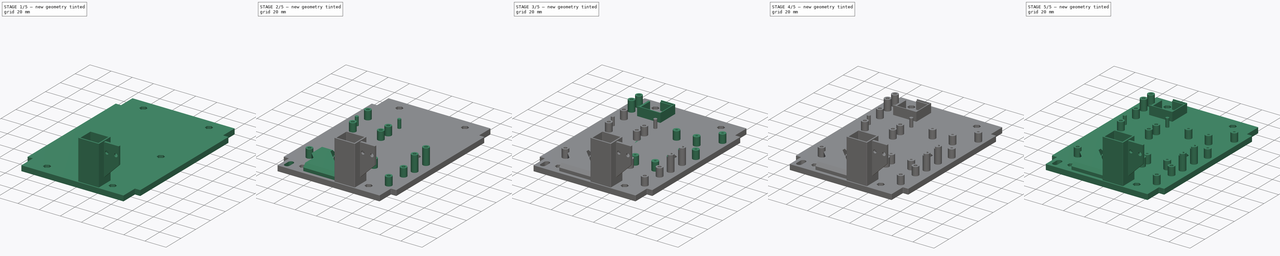
[diagram: build sequence overview — one tinted view per stage of 5, left to right]
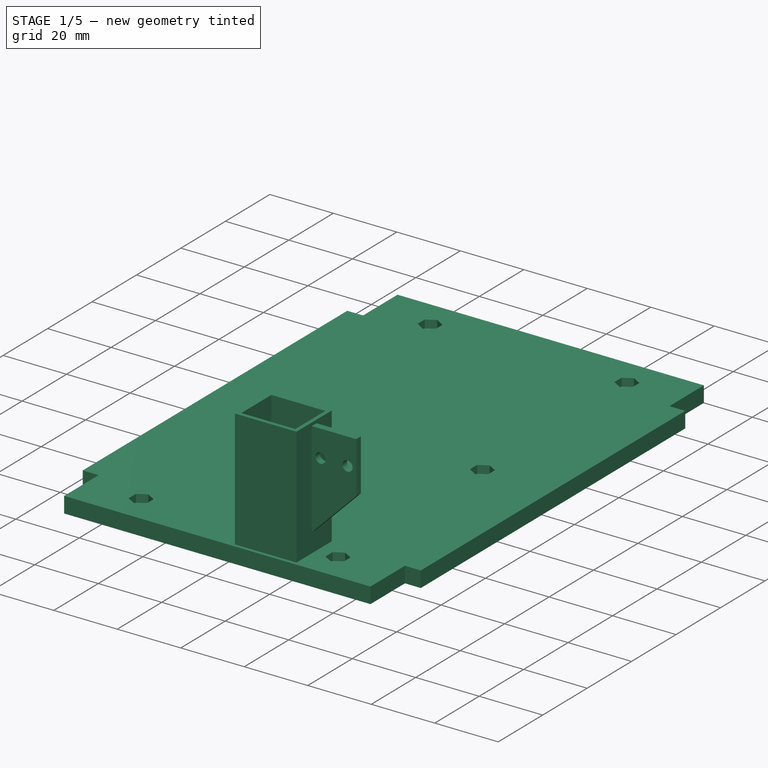
[diagram: stage 1 of 5 — iso view after this stage's code; geometry added in this stage tinted green]
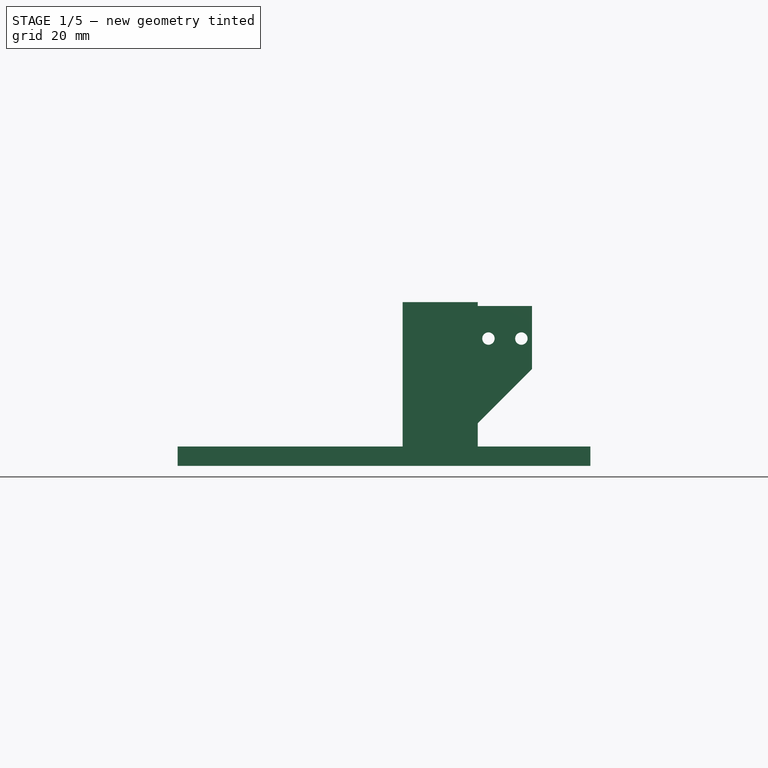
[diagram: stage 1 of 5 — front view after this stage's code; geometry added in this stage tinted green]
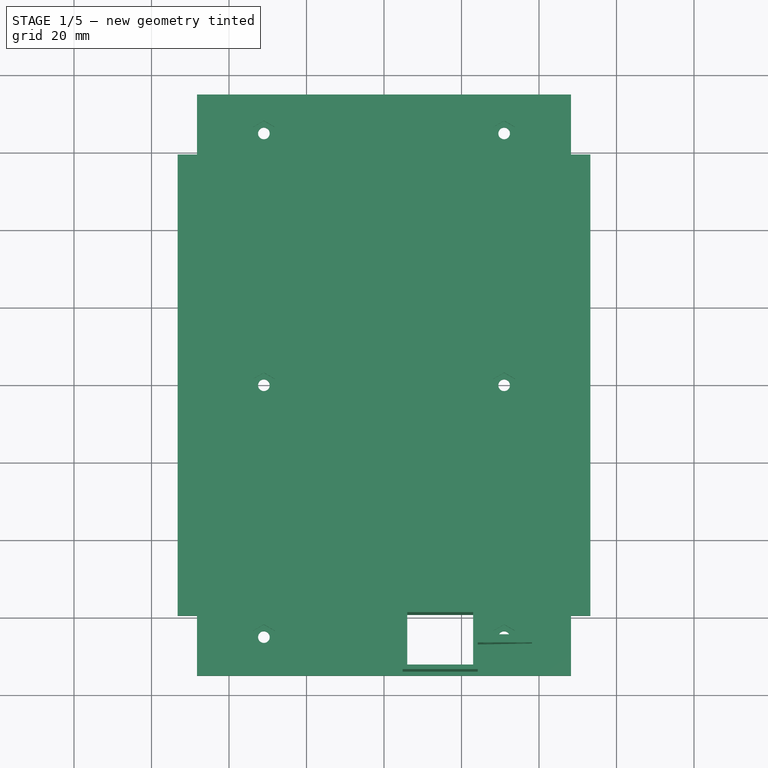
[diagram: stage 1 of 5 — top view after this stage's code; geometry added in this stage tinted green]
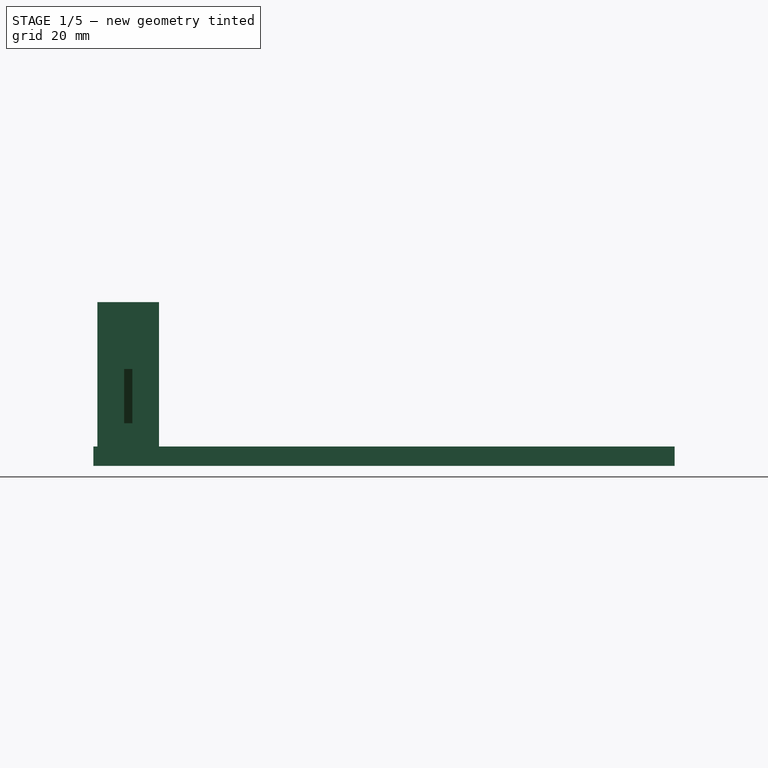
[diagram: stage 1 of 5 — right view after this stage's code; geometry added in this stage tinted green]
FCSTD DOCUMENT  (FreeCAD 0.18R4 (GitTag))
Label: Circuitry_Mountingplate_Extended_for_devkit_v4_extended
License: CreativeCommons Attribution-NonCommercial
LicenseURL: http://creativecommons.org/licenses/by-nc/4.0/
objects: Sketcher::SketchObject×30, PartDesign::Pocket×25, PartDesign::Pad×17, PartDesign::Plane×4, PartDesign::Body×3, PartDesign::Chamfer×1, PartDesign::Fillet×1, App::Part×1
note: 123 computed .brp shape members not serialized (recipe doc carries the construction recipe); baked Part::Feature solids carry a one-line shape summary decoded from their .brp

FEATURE [Sketcher::SketchObject] Sketch
  MapMode = 5
  Support = -> [XY_Plane001]
  sketch-geometry (12):
    g0: LineSegment StartX=-53.25 StartY=-59.5 StartZ=0 EndX=-53.25 EndY=59.5 EndZ=0
    g1: LineSegment StartX=-53.25 StartY=59.5 StartZ=0 EndX=-48.25 EndY=59.5 EndZ=0
    g2: LineSegment StartX=-48.25 StartY=59.5 StartZ=0 EndX=-48.25 EndY=75 EndZ=0
    g3: LineSegment StartX=-48.25 StartY=75 StartZ=0 EndX=48.25 EndY=75 EndZ=0
    g4: LineSegment StartX=48.25 StartY=75 StartZ=0 EndX=48.25 EndY=59.5 EndZ=0
    g5: LineSegment StartX=48.25 StartY=59.5 StartZ=0 EndX=53.25 EndY=59.5 EndZ=0
    g6: LineSegment StartX=53.25 StartY=59.5 StartZ=0 EndX=53.25 EndY=-59.5 EndZ=0
    g7: LineSegment StartX=53.25 StartY=-59.5 StartZ=0 EndX=48.25 EndY=-59.5 EndZ=0
    g8: LineSegment StartX=48.25 StartY=-59.5 StartZ=0 EndX=48.25 EndY=-75 EndZ=0
    g9: LineSegment StartX=48.25 StartY=-75 StartZ=0 EndX=-48.25 EndY=-75 EndZ=0
    g10: LineSegment StartX=-48.25 StartY=-75 StartZ=0 EndX=-48.25 EndY=-59.5 EndZ=0
    g11: LineSegment StartX=-48.25 StartY=-59.5 StartZ=0 EndX=-53.25 EndY=-59.5 EndZ=0
  constraints (33):
    c: Coincident(g0,g1)
    c: Horizontal(g1)
    c: Coincident(g1,g2)
    c: Vertical(g2)
    c: Coincident(g2,g3)
    c: Horizontal(g3)
    c: Coincident(g3,g4)
    c: Vertical(g4)
    c: Coincident(g4,g5)
    c: Coincident(g5,g6)
    c: Vertical(g6)
    c: Coincident(g6,g7)
    c: Coincident(g7,g8)
    c: Vertical(g8)
    c: Coincident(g8,g9)
    c: Horizontal(g9)
    c: Coincident(g9,g10)
    c: Vertical(g10)
    c: Coincident(g10,g11)
    c: Coincident(g11,g0)
    c: Horizontal(g11)
    c: Symmetric(g1,g4,g-2)
    c: Symmetric(g7,g10,g-2)
    c: Vertical(g10,g1)
    c: Equal(g1,g5)
    c: Horizontal(g5)
    c: Horizontal(g7)
    c: Equal(g2,g10)
    c: Symmetric(g0,g0,g-1)
    c: DistanceX(g0,g5) = 106.5
    c: DistanceY(g9,g2) = 150
    c: DistanceX(g1,g1) = 5
    c: DistanceY(g2,g2) = 15.5
FEATURE [PartDesign::Pad] Pad  label="Baseplate"
  Length = 5
  Length2 = 100
  Profile = -> Sketch
  Type = 0
FEATURE [Sketcher::SketchObject] Sketch002
  MapMode = 5
  Placement = pos=(0,0,5) rot=(0,0,1;0rad)
  Support = -> [Pad]
  sketch-geometry (48):
    g0: LineSegment StartX=-31 StartY=-61.7668 StartZ=0 EndX=-33.8 EndY=-63.3834 EndZ=0
    g1: LineSegment StartX=-33.8 StartY=-63.3834 StartZ=0 EndX=-33.8 EndY=-66.6166 EndZ=0
    g2: LineSegment StartX=-33.8 StartY=-66.6166 StartZ=0 EndX=-31 EndY=-68.2332 EndZ=0
    g3: LineSegment StartX=-31 StartY=-68.2332 StartZ=0 EndX=-28.2 EndY=-66.6166 EndZ=0
    g4: LineSegment StartX=-28.2 StartY=-66.6166 StartZ=0 EndX=-28.2 EndY=-63.3834 EndZ=0
    g5: LineSegment StartX=-28.2 StartY=-63.3834 StartZ=0 EndX=-31 EndY=-61.7668 EndZ=0
    g6: Circle [constr] CenterX=-31 CenterY=-65 CenterZ=0 NormalX=0 NormalY=0 NormalZ=1 AngleXU=0 Radius=3.23316
    g7: LineSegment StartX=31 StartY=-61.7668 StartZ=0 EndX=28.2 EndY=-63.3834 EndZ=0
    g8: LineSegment StartX=28.2 StartY=-63.3834 StartZ=0 EndX=28.2 EndY=-66.6166 EndZ=0
    g9: LineSegment StartX=28.2 StartY=-66.6166 StartZ=0 EndX=31 EndY=-68.2332 EndZ=0
    g10: LineSegment StartX=31 StartY=-68.2332 StartZ=0 EndX=33.8 EndY=-66.6166 EndZ=0
    g11: LineSegment StartX=33.8 StartY=-66.6166 StartZ=0 EndX=33.8 EndY=-63.3834 EndZ=0
    g12: LineSegment StartX=33.8 StartY=-63.3834 StartZ=0 EndX=31 EndY=-61.7668 EndZ=0
    g13: Circle [constr] CenterX=31 CenterY=-65 CenterZ=0 NormalX=0 NormalY=0 NormalZ=1 AngleXU=0 Radius=3.23316
    g14: LineSegment StartX=31 StartY=3.23316 StartZ=0 EndX=28.2 EndY=1.61658 EndZ=0
    g15: LineSegment StartX=28.2 StartY=1.61658 StartZ=0 EndX=28.2 EndY=-1.61658 EndZ=0
    g16: LineSegment StartX=28.2 StartY=-1.61658 StartZ=0 EndX=31 EndY=-3.23316 EndZ=0
    g17: LineSegment StartX=31 StartY=-3.23316 StartZ=0 EndX=33.8 EndY=-1.61658 EndZ=0
    g18: LineSegment StartX=33.8 StartY=-1.61658 StartZ=0 EndX=33.8 EndY=1.61658 EndZ=0
    g19: LineSegment StartX=33.8 StartY=1.61658 StartZ=0 EndX=31 EndY=3.23316 EndZ=0
    g20: Circle [constr] CenterX=31 CenterY=0 CenterZ=0 NormalX=0 NormalY=0 NormalZ=1 AngleXU=0 Radius=3.23316
    g21: LineSegment StartX=-31 StartY=3.23316 StartZ=0 EndX=-33.8 EndY=1.61658 EndZ=0
    g22: LineSegment StartX=-33.8 StartY=1.61658 StartZ=0 EndX=-33.8 EndY=-1.61658 EndZ=0
    g23: LineSegment StartX=-33.8 StartY=-1.61658 StartZ=0 EndX=-31 EndY=-3.23316 EndZ=0
    g24: LineSegment StartX=-31 StartY=-3.23316 StartZ=0 EndX=-28.2 EndY=-1.61658 EndZ=0
    g25: LineSegment StartX=-28.2 StartY=-1.61658 StartZ=0 EndX=-28.2 EndY=1.61658 EndZ=0
    g26: LineSegment StartX=-28.2 StartY=1.61658 StartZ=0 EndX=-31 EndY=3.23316 EndZ=0
    g27: Circle [constr] CenterX=-31 CenterY=0 CenterZ=0 NormalX=0 NormalY=0 NormalZ=1 AngleXU=0 Radius=3.23316
    g28: LineSegment StartX=-31 StartY=68.2332 StartZ=0 EndX=-33.8 EndY=66.6166 EndZ=0
    g29: LineSegment StartX=-33.8 StartY=66.6166 StartZ=0 EndX=-33.8 EndY=63.3834 EndZ=0
    g30: LineSegment StartX=-33.8 StartY=63.3834 StartZ=0 EndX=-31 EndY=61.7668 EndZ=0
    g31: LineSegment StartX=-31 StartY=61.7668 StartZ=0 EndX=-28.2 EndY=63.3834 EndZ=0
    g32: LineSegment StartX=-28.2 StartY=63.3834 StartZ=0 EndX=-28.2 EndY=66.6166 EndZ=0
    g33: LineSegment StartX=-28.2 StartY=66.6166 StartZ=0 EndX=-31 EndY=68.2332 EndZ=0
    g34: Circle [constr] CenterX=-31 CenterY=65 CenterZ=0 NormalX=0 NormalY=0 NormalZ=1 AngleXU=0 Radius=3.23316
    g35: LineSegment StartX=31 StartY=68.2332 StartZ=0 EndX=28.2 EndY=66.6166 EndZ=0
    g36: LineSegment StartX=28.2 StartY=66.6166 StartZ=0 EndX=28.2 EndY=63.3834 EndZ=0
    g37: LineSegment StartX=28.2 StartY=63.3834 StartZ=0 EndX=31 EndY=61.7668 EndZ=0
    g38: LineSegment StartX=31 StartY=61.7668 StartZ=0 EndX=33.8 EndY=63.3834 EndZ=0
    g39: LineSegment StartX=33.8 StartY=63.3834 StartZ=0 EndX=33.8 EndY=66.6166 EndZ=0
    g40: LineSegment StartX=33.8 StartY=66.6166 StartZ=0 EndX=31 EndY=68.2332 EndZ=0
    g41: Circle [constr] CenterX=31 CenterY=65 CenterZ=0 NormalX=0 NormalY=0 NormalZ=1 AngleXU=0 Radius=3.23316
    g42: Circle CenterX=-31 CenterY=65 CenterZ=0 NormalX=0 NormalY=0 NormalZ=1 AngleXU=0 Radius=1.5
    g43: Circle CenterX=31 CenterY=65 CenterZ=0 NormalX=0 NormalY=0 NormalZ=1 AngleXU=0 Radius=1.5
    g44: Circle CenterX=-31 CenterY=0 CenterZ=0 NormalX=0 NormalY=0 NormalZ=1 AngleXU=0 Radius=1.5
    g45: Circle CenterX=31 CenterY=0 CenterZ=0 NormalX=0 NormalY=0 NormalZ=1 AngleXU=0 Radius=1.5
    g46: Circle CenterX=31 CenterY=-65 CenterZ=0 NormalX=0 NormalY=0 NormalZ=1 AngleXU=0 Radius=1.5
    g47: Circle CenterX=-31 CenterY=-65 CenterZ=0 NormalX=0 NormalY=0 NormalZ=1 AngleXU=0 Radius=1.5
  constraints (110):
    c: Coincident(g0,g1)
    c: Coincident(g1,g2)
    c: Coincident(g2,g3)
    c: Coincident(g3,g4)
    c: Coincident(g4,g5)
    c: Coincident(g5,g0)
    c: Equal(g0, g1-g5) x5
    c: PointOnObject(g0,g6)
    c: PointOnObject(g1,g6)
    c: PointOnObject(g2,g6)
    c: PointOnObject(g3,g6)
    c: PointOnObject(g4,g6)
    c: PointOnObject(g5,g6)
    c: Coincident(g7,g8)
    c: Coincident(g8,g9)
    c: Coincident(g9,g10)
    c: Coincident(g10,g11)
    c: Coincident(g11,g12)
    c: Coincident(g12,g7)
    c: Equal(g7, g8-g12) x5
    c: PointOnObject(g7,g13)
    c: PointOnObject(g8,g13)
    c: PointOnObject(g9,g13)
    c: PointOnObject(g10,g13)
    c: PointOnObject(g11,g13)
    c: PointOnObject(g12,g13)
    c: Coincident(g14,g15)
    c: Coincident(g15,g16)
    c: Coincident(g16,g17)
    c: Coincident(g17,g18)
    c: Coincident(g18,g19)
    c: Coincident(g19,g14)
    c: Equal(g14, g15-g19) x5
    c: PointOnObject(g14,g20)
    c: PointOnObject(g15,g20)
    c: PointOnObject(g16,g20)
    c: PointOnObject(g17,g20)
    c: PointOnObject(g18,g20)
    c: PointOnObject(g19,g20)
    c: PointOnObject(g20,g-1)
    c: Coincident(g21,g22)
    c: Coincident(g22,g23)
    c: Coincident(g23,g24)
    c: Coincident(g24,g25)
    c: Coincident(g25,g26)
    c: Coincident(g26,g21)
    c: Equal(g21, g22-g26) x5
    c: PointOnObject(g21,g27)
    c: PointOnObject(g22,g27)
    c: PointOnObject(g23,g27)
    c: PointOnObject(g24,g27)
    c: PointOnObject(g25,g27)
    c: PointOnObject(g26,g27)
    c: Coincident(g28,g29)
    c: Coincident(g29,g30)
    c: Coincident(g30,g31)
    c: Coincident(g31,g32)
    c: Coincident(g32,g33)
    c: Coincident(g33,g28)
    c: Equal(g28, g29-g33) x5
    c: PointOnObject(g28,g34)
    c: PointOnObject(g29,g34)
    c: PointOnObject(g30,g34)
    c: PointOnObject(g31,g34)
    c: PointOnObject(g32,g34)
    c: PointOnObject(g33,g34)
    c: Coincident(g35,g36)
    c: Coincident(g36,g37)
    c: Coincident(g37,g38)
    c: Coincident(g38,g39)
    c: Coincident(g39,g40)
    c: Coincident(g40,g35)
    c: Equal(g35, g36-g40) x5
    c: PointOnObject(g35,g41)
    c: PointOnObject(g36,g41)
    c: PointOnObject(g37,g41)
    c: PointOnObject(g38,g41)
    c: PointOnObject(g39,g41)
    c: PointOnObject(g40,g41)
    c: Coincident(g42,g34)
    c: Coincident(g43,g41)
    c: Coincident(g44,g27)
    c: Coincident(g45,g20)
    c: Coincident(g46,g13)
    c: Coincident(g47,g6)
    c: Vertical(g4)
    c: Vertical(g8)
    c: Vertical(g15)
    c: Vertical(g25)
    c: Vertical(g32)
    c: Vertical(g36)
    c: Equal(g34,g41)
    c: Equal(g41,g27)
    c: Equal(g27,g20)
    c: Equal(g20,g13)
    c: Equal(g13,g6)
    c: Symmetric(g44,g45,g-1)
    c: Symmetric(g47,g46,g-2)
    c: Symmetric(g42,g43,g-2)
    c: Vertical(g42,g44)
    c: Equal(g42,g43)
    c: Equal(g43,g44)
    c: Equal(g44,g45)
    c: Equal(g45,g47)
    c: Equal(g47,g46)
    c: Radius(g46) = 1.5
    c: DistanceX(g7,g11) = 5.6
    c: DistanceX(g44,g45) = 62
    c: DistanceY(g45,g43) = 65
    c: Symmetric(g43,g46,g-1)
FEATURE [PartDesign::Pocket] Pocket  label="M3 Nutholes LiPo Mountingbrackets"
  BaseFeature = -> Pad
  Length = 2.5
  Length2 = 100
  Profile = -> Sketch002
  Type = 0
FEATURE [Sketcher::SketchObject] Sketch003
  ExternalGeometry = -> [Pocket]
  MapMode = 5
  Placement = pos=(0,0,5) rot=(0,0,1;0rad)
  Support = -> [Pocket]
  sketch-geometry (6):
    g0: Circle CenterX=-31 CenterY=65 CenterZ=0 NormalX=0 NormalY=0 NormalZ=1 AngleXU=0 Radius=1.5
    g1: Circle CenterX=31 CenterY=65 CenterZ=0 NormalX=0 NormalY=0 NormalZ=1 AngleXU=0 Radius=1.5
    g2: Circle CenterX=31 CenterY=0 CenterZ=0 NormalX=0 NormalY=0 NormalZ=1 AngleXU=0 Radius=1.5
    g3: Circle CenterX=-31 CenterY=0 CenterZ=0 NormalX=0 NormalY=0 NormalZ=1 AngleXU=0 Radius=1.5
    g4: Circle CenterX=-31 CenterY=-65 CenterZ=0 NormalX=0 NormalY=0 NormalZ=1 AngleXU=0 Radius=1.5
    g5: Circle CenterX=31 CenterY=-65 CenterZ=0 NormalX=0 NormalY=0 NormalZ=1 AngleXU=0 Radius=1.5
  constraints (12):
    c: Coincident(g0,g-8)
    c: Coincident(g1,g-7)
    c: Coincident(g2,g-6)
    c: Coincident(g3,g-5)
    c: Coincident(g4,g-4)
    c: Coincident(g5,g-3)
    c: Equal(g5,g4)
    c: Equal(g4,g3)
    c: Equal(g3,g2)
    c: Equal(g2,g0)
    c: Equal(g0,g1)
    c: Equal(g1,g-5)
FEATURE [PartDesign::Pocket] Pocket001  label="M3 Screwholes LiPo Mountingbrackets"
  BaseFeature = -> Pocket
  Length = 5
  Length2 = 100
  Profile = -> Sketch003
  Type = 0
FEATURE [Sketcher::SketchObject] Sketch004
  MapMode = 5
  Placement = pos=(0,0,5) rot=(0,0,1;0rad)
  Support = -> [Pocket001]
  sketch-geometry (4):
    g0: LineSegment StartX=6 StartY=-72.75 StartZ=0 EndX=26.5 EndY=-72.75 EndZ=0
    g1: LineSegment StartX=26.5 StartY=-72.75 StartZ=0 EndX=26.5 EndY=-59.25 EndZ=0
    g2: LineSegment StartX=26.5 StartY=-59.25 StartZ=0 EndX=6 EndY=-59.25 EndZ=0
    g3: LineSegment StartX=6 StartY=-59.25 StartZ=0 EndX=6 EndY=-72.75 EndZ=0
  constraints (12):
    c: Coincident(g0,g1)
    c: Coincident(g1,g2)
    c: Coincident(g2,g3)
    c: Coincident(g3,g0)
    c: Horizontal(g0)
    c: Horizontal(g2)
    c: Vertical(g1)
    c: Vertical(g3)
    c: DistanceX(g2,g2) = 20.5
    c: DistanceY(g1,g1) = 13.5
    c: DistanceX(g-1,g1) = 26.5
    c: DistanceY(g2,g-1) = 59.25
FEATURE [PartDesign::Pocket] Pocket002  label="Balancecharger-Cable Hole"
  BaseFeature = -> Pocket001
  Length = 5
  Length2 = 100
  Profile = -> Sketch004
  Type = 0
FEATURE [Sketcher::SketchObject] Sketch006
  MapMode = 5
  Placement = pos=(0,-59.25,0) rot=(1,0,0;1.5708rad)
  Support = -> [Pocket002]
  sketch-geometry (4):
    g0: LineSegment StartX=26.5 StartY=0.75 StartZ=0 EndX=23 EndY=4.25 EndZ=0
    g1: LineSegment StartX=23 StartY=4.25 StartZ=0 EndX=23 EndY=5 EndZ=0
    g2: LineSegment StartX=23 StartY=5 StartZ=0 EndX=26.5 EndY=5 EndZ=0
    g3: LineSegment StartX=26.5 StartY=5 StartZ=0 EndX=26.5 EndY=0.75 EndZ=0
  constraints (12):
    c: Coincident(g0,g1)
    c: Vertical(g1)
    c: Coincident(g1,g2)
    c: Horizontal(g2)
    c: Coincident(g2,g3)
    c: Coincident(g3,g0)
    c: Vertical(g3)
    c: DistanceX(g2,g2) = 3.5
    c: DistanceY(g1,g1) = 0.75
    c: Angle(g0) = 2.35619
    c: DistanceY(g-1,g2) = 5
    c: DistanceX(g-1,g2) = 26.5
FEATURE [PartDesign::Pad] Pad001  label="Balancecharger-Cable Hole Wedge"
  BaseFeature = -> Pocket002
  Length = 13.5
  Length2 = 100
  Profile = -> Sketch006
  Type = 0
FEATURE [Sketcher::SketchObject] Sketch007
  ExternalGeometry = -> [Pad001]
  MapMode = 5
  Placement = pos=(0,0,5) rot=(0,0,1;0rad)
  Support = -> [Pad001]
  sketch-geometry (12):
    g0: LineSegment StartX=6 StartY=-59.25 StartZ=0 EndX=23 EndY=-59.25 EndZ=0
    g1: LineSegment StartX=23 StartY=-59.25 StartZ=0 EndX=23 EndY=-72.75 EndZ=0
    g2: LineSegment StartX=23 StartY=-72.75 StartZ=0 EndX=6 EndY=-72.75 EndZ=0
    g3: LineSegment StartX=6 StartY=-72.75 StartZ=0 EndX=6 EndY=-59.25 EndZ=0
    g4: LineSegment StartX=24.2 StartY=-73.95 StartZ=0 EndX=4.8 EndY=-73.95 EndZ=0
    g5: LineSegment StartX=4.8 StartY=-73.95 StartZ=0 EndX=4.8 EndY=-58.05 EndZ=0
    g6: LineSegment StartX=4.8 StartY=-58.05 StartZ=0 EndX=24.2 EndY=-58.05 EndZ=0
    g7: LineSegment StartX=24.2 StartY=-58.05 StartZ=0 EndX=24.2 EndY=-73.95 EndZ=0
    g8: LineSegment [constr] StartX=4.8 StartY=-58.05 StartZ=0 EndX=6 EndY=-59.25 EndZ=0
    g9: LineSegment [constr] StartX=6 StartY=-72.75 StartZ=0 EndX=4.8 EndY=-73.95 EndZ=0
    g10: LineSegment [constr] StartX=23 StartY=-72.75 StartZ=0 EndX=24.2 EndY=-73.95 EndZ=0
    g11: LineSegment [constr] StartX=23 StartY=-59.25 StartZ=0 EndX=24.2 EndY=-58.05 EndZ=0
  constraints (29):
    c: Coincident(g0,g1)
    c: Coincident(g1,g2)
    c: Coincident(g2,g3)
    c: Coincident(g3,g0)
    c: Horizontal(g2)
    c: Vertical(g1)
    c: Coincident(g4,g5)
    c: Coincident(g5,g6)
    c: Coincident(g6,g7)
    c: Coincident(g7,g4)
    c: Horizontal(g4)
    c: Horizontal(g6)
    c: Vertical(g5)
    c: Coincident(g0,g-4)
    c: Coincident(g0,g-3)
    c: Coincident(g2,g-4)
    c: DistanceY(g0,g5) = 1.2
    c: Coincident(g8,g5)
    c: Coincident(g8,g0)
    c: Coincident(g9,g2)
    c: Coincident(g9,g4)
    c: Coincident(g10,g1)
    c: Coincident(g11,g0)
    c: Coincident(g11,g6)
    c: Coincident(g10,g4)
    c: Equal(g10,g11)
    c: Equal(g11,g8)
    c: Equal(g8,g9)
    c: DistanceX(g5,g0) = 1.2
FEATURE [PartDesign::Pad] Pad002  label="Balancecharger-Cable Hole Tunnel"
  BaseFeature = -> Pad001
  Length = 37.25
  Length2 = 100
  Profile = -> Sketch007
  Type = 0
FEATURE [Sketcher::SketchObject] Sketch008
  ExternalGeometry = -> [Pad002]
  MapMode = 5
  Placement = pos=(24.2,0,0) rot=(0.57735,0.57735,0.57735;2.0944rad)
  Support = -> [Pad002]
  sketch-geometry (5):
    g0: LineSegment [constr] StartX=-66 StartY=42.25 StartZ=0 EndX=-66 EndY=0 EndZ=0
    g1: LineSegment StartX=-67.05 StartY=41.25 StartZ=0 EndX=-64.95 EndY=41.25 EndZ=0
    g2: LineSegment StartX=-64.95 StartY=41.25 StartZ=0 EndX=-64.95 EndY=5 EndZ=0
    g3: LineSegment StartX=-64.95 StartY=5 StartZ=0 EndX=-67.05 EndY=5 EndZ=0
    g4: LineSegment StartX=-67.05 StartY=5 StartZ=0 EndX=-67.05 EndY=41.25 EndZ=0
  constraints (14):
    c: PointOnObject(g0,g-1)
    c: Vertical(g0)
    c: Symmetric(g-3,g-3,g0)
    c: Coincident(g1,g2)
    c: Coincident(g2,g3)
    c: Coincident(g3,g4)
    c: Coincident(g4,g1)
    c: Horizontal(g3)
    c: Vertical(g2)
    c: Vertical(g4)
    c: DistanceY(g0,g2) = 5
    c: DistanceX(g1,g1) = 2.1
    c: Symmetric(g1,g1,g0)
    c: DistanceY(g0,g1) = 41.25
FEATURE [PartDesign::Pad] Pad003  label="USB-Ports Fin"
  BaseFeature = -> Pad002
  Length = 14
  Length2 = 100
  Profile = -> Sketch008
  Type = 0
FEATURE [Sketcher::SketchObject] Sketch009
  ExternalGeometry = -> [Pad003]
  MapMode = 5
  Placement = pos=(0,-67.05,0) rot=(1,0,0;1.5708rad)
  Support = -> [Pad003]
  sketch-geometry (4):
    g0: LineSegment StartX=24.2 StartY=5 StartZ=0 EndX=24.2 EndY=11 EndZ=0
    g1: LineSegment StartX=24.2 StartY=11 StartZ=0 EndX=38.2 EndY=25 EndZ=0
    g2: LineSegment StartX=38.2 StartY=25 StartZ=0 EndX=38.2 EndY=5 EndZ=0
    g3: LineSegment StartX=38.2 StartY=5 StartZ=0 EndX=24.2 EndY=5 EndZ=0
  constraints (11):
    c: Vertical(g0)
    c: Coincident(g0,g1)
    c: Coincident(g1,g2)
    c: Vertical(g2)
    c: Coincident(g2,g3)
    c: Coincident(g3,g0)
    c: Horizontal(g3)
    c: DistanceX(g0,g2) = 14
    c: DistanceY(g2,g2) = 20
    c: Coincident(g2,g-3)
    c: Angle(g1) = 0.785398
FEATURE [PartDesign::Pocket] Pocket003  label="USB-Ports Fin Cutout"
  BaseFeature = -> Pad003
  Length = 2.1
  Length2 = 100
  Profile = -> Sketch009
  Type = 0
FEATURE [Sketcher::SketchObject] Sketch010
  MapMode = 5
  Placement = pos=(0,-67.05,0) rot=(1,0,0;1.5708rad)
  Support = -> [Pocket003]
  sketch-geometry (2):
    g0: Circle CenterX=26.95 CenterY=32.85 CenterZ=0 NormalX=0 NormalY=0 NormalZ=1 AngleXU=0 Radius=1.6
    g1: Circle CenterX=35.45 CenterY=32.85 CenterZ=0 NormalX=0 NormalY=0 NormalZ=1 AngleXU=0 Radius=1.6
  constraints (6):
    c: Equal(g1,g0)
    c: Radius(g1) = 1.6
    c: DistanceX(g0,g1) = 8.5
    c: DistanceY(g-1,g0) = 32.85
    c: DistanceX(g-1,g0) = 26.95
    c: Horizontal(g1,g0)
FEATURE [PartDesign::Pocket] Pocket004  label="USB-Ports M3 Screwholes"
  BaseFeature = -> Pocket003
  Length = 2.1
  Length2 = 100
  Profile = -> Sketch010
  Type = 0
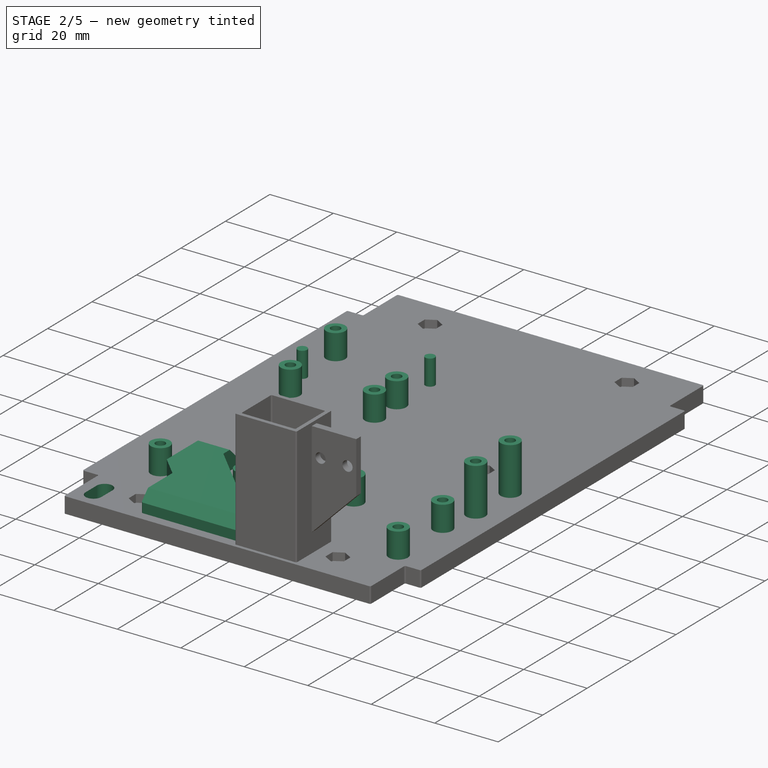
[diagram: stage 2 of 5 — iso view after this stage's code; geometry added in this stage tinted green]
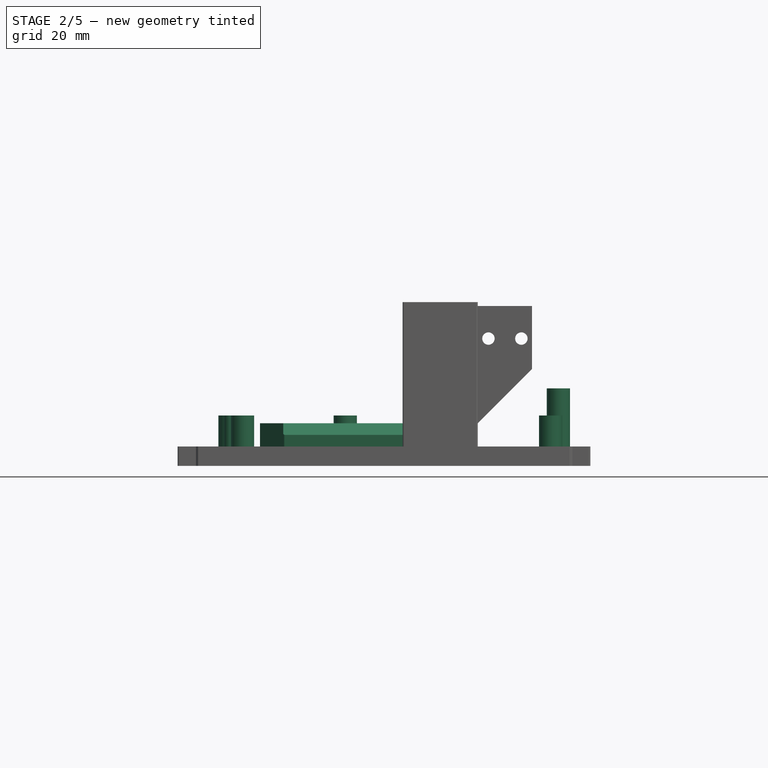
[diagram: stage 2 of 5 — front view after this stage's code; geometry added in this stage tinted green]
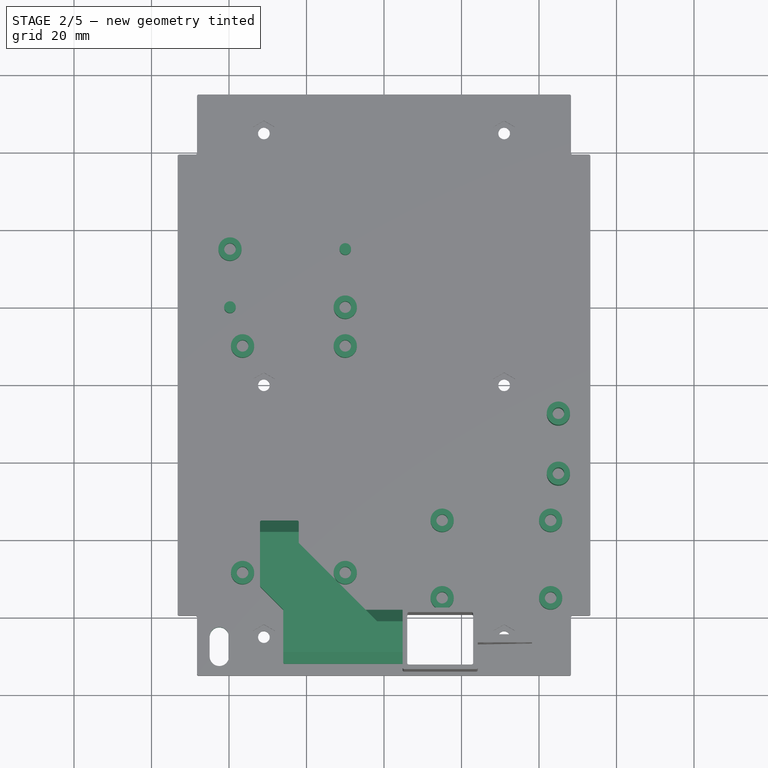
[diagram: stage 2 of 5 — top view after this stage's code; geometry added in this stage tinted green]
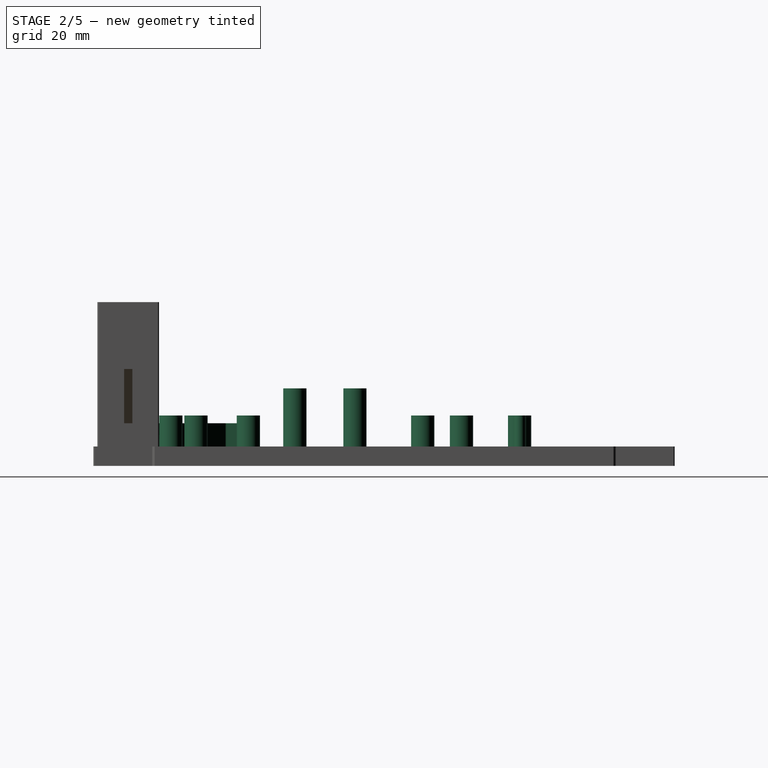
[diagram: stage 2 of 5 — right view after this stage's code; geometry added in this stage tinted green]
FEATURE [Sketcher::SketchObject] Sketch410
  ExternalGeometry = -> [Pocket004]
  MapMode = 5
  Placement = pos=(0,0,5) rot=(0,0,1;0rad)
  Support = -> [Pocket004]
  sketch-geometry (9):
    g0: LineSegment StartX=4.8 StartY=-72 StartZ=0 EndX=-26 EndY=-72 EndZ=0
    g1: LineSegment StartX=-26 StartY=-72 StartZ=0 EndX=-26 EndY=-58.05 EndZ=0
    g2: LineSegment StartX=-26 StartY=-58.05 StartZ=0 EndX=-32 EndY=-52.05 EndZ=0
    g3: LineSegment StartX=-32 StartY=-52.05 StartZ=0 EndX=-32 EndY=-35 EndZ=0
    g4: LineSegment StartX=-32 StartY=-35 StartZ=0 EndX=-22 EndY=-35 EndZ=0
    g5: LineSegment StartX=-22 StartY=-35 StartZ=0 EndX=-22 EndY=-40.85 EndZ=0
    g6: LineSegment StartX=-22 StartY=-40.85 StartZ=0 EndX=-4.8 EndY=-58.05 EndZ=0
    g7: LineSegment StartX=-4.8 StartY=-58.05 StartZ=0 EndX=4.8 EndY=-58.05 EndZ=0
    g8: LineSegment StartX=4.8 StartY=-58.05 StartZ=0 EndX=4.8 EndY=-72 EndZ=0
  constraints (25):
    c: Horizontal(g0)
    c: Coincident(g0,g1)
    c: Vertical(g1)
    c: Coincident(g1,g2)
    c: Coincident(g2,g3)
    c: Vertical(g3)
    c: Coincident(g3,g4)
    c: Horizontal(g4)
    c: Coincident(g4,g5)
    c: Vertical(g5)
    c: Coincident(g5,g6)
    c: Coincident(g6,g7)
    c: Coincident(g7,g8)
    c: Coincident(g7,g-3)
    c: Parallel(g2,g6)
    c: Angle(g2) = 2.35619
    c: DistanceX(g4,g4) = 10
    c: Horizontal(g1,g6)
    c: DistanceX(g0,g-1) = 26
    c: DistanceX(g4,g-1) = 22
    c: Symmetric(g6,g7,g-2)
    c: Coincident(g0,g8)
    c: Vertical(g8)
    c: DistanceY(g0,g-1) = 72
    c: DistanceY(g0,g3) = 37
FEATURE [PartDesign::Pad] Pad193  label="Power Cable Cap"
  BaseFeature = -> Pocket004
  Length = 6
  Length2 = 100
  Profile = -> Sketch410
  Type = 0
FEATURE [Sketcher::SketchObject] Sketch414
  ExternalGeometry = -> [Pad193]
  MapMode = 5
  Placement = pos=(0,0,0) rot=(1,0,0;3.14159rad)
  Support = -> [Pad193]
  sketch-geometry (9):
    g0: LineSegment StartX=6 StartY=70 StartZ=0 EndX=-24 EndY=70 EndZ=0
    g1: LineSegment StartX=-24 StartY=70 StartZ=0 EndX=-24 EndY=58.05 EndZ=0
    g2: LineSegment StartX=-24 StartY=58.05 StartZ=0 EndX=-30.8 EndY=51.25 EndZ=0
    g3: LineSegment StartX=-30.8 StartY=51.25 StartZ=0 EndX=-30.8 EndY=36.2 EndZ=0
    g4: LineSegment StartX=-30.8 StartY=36.2 StartZ=0 EndX=-23.2 EndY=36.2 EndZ=0
    g5: LineSegment StartX=-23.2 StartY=36.2 StartZ=0 EndX=-23.2 EndY=40.85 EndZ=0
    g6: LineSegment StartX=-23.2 StartY=40.85 StartZ=0 EndX=-4.8 EndY=59.25 EndZ=0
    g7: LineSegment StartX=-4.8 StartY=59.25 StartZ=0 EndX=6 EndY=59.25 EndZ=0
    g8: LineSegment StartX=6 StartY=59.25 StartZ=0 EndX=6 EndY=70 EndZ=0
  constraints (27):
    c: Horizontal(g0)
    c: Coincident(g0,g1)
    c: Vertical(g1)
    c: Coincident(g1,g2)
    c: Coincident(g2,g3)
    c: Vertical(g3)
    c: Coincident(g3,g4)
    c: Horizontal(g4)
    c: Coincident(g4,g5)
    c: Vertical(g5)
    c: Coincident(g5,g6)
    c: Coincident(g6,g7)
    c: Horizontal(g7)
    c: Coincident(g7,g8)
    c: Coincident(g8,g0)
    c: Vertical(g8)
    c: DistanceY(g8,g8) = 10.75
    c: DistanceX(g0,g0) = 30
    c: Vertical(g0,g-3)
    c: DistanceY(g-1,g0) = 70
    c: Parallel(g2,g6)
    c: Angle(g6) = 0.785398
    c: Horizontal(g-4,g1)
    c: DistanceX(g-4,g2) = 1.2
    c: Vertical(g-5,g6)
    c: Horizontal(g-5,g5)
    c: DistanceY(g-6,g3) = 1.2
FEATURE [PartDesign::Pocket] Pocket198  label="Power Cable Cave"
  BaseFeature = -> Pad193
  Length = 10
  Length2 = 100
  Profile = -> Sketch414
  Type = 0
FEATURE [PartDesign::Chamfer] Chamfer  label="Power Cable Cap & Cave Chamfer"
  Base = -> Pocket198 [Edge208,Edge222,Edge216,Edge144,Edge150,Edge136]
  BaseFeature = -> Pocket198
  Size = 3
FEATURE [PartDesign::Body] Body150  label="Circuitry Mountingplate Rear Extension"
  Group = -> [Sketch445,Pad229,Sketch447,Pocket214,DatumPlane002,Sketch446,Pocket215,DatumPlane003,Sketch448,Pocket216,Pocket217,Pocket210,Pad230,Pocket213,Pocket211,Pocket212]
  Origin = -> Origin233
  Placement = pos=(-1.3e-14,-103.75,2) rot=(0,0,1;3.14159rad)
  Tip = -> Pocket212
FEATURE [Sketcher::SketchObject] Sketch449
  MapMode = 5
  Placement = pos=(0,0,5) rot=(0,0,1;0rad)
  sketch-geometry (4):
    g0: ArcOfCircle CenterX=-42.5 CenterY=-70 CenterZ=0 NormalX=0 NormalY=0 NormalZ=1 AngleXU=0 Radius=2.5 StartAngle=3.14159 EndAngle=6.28319
    g1: ArcOfCircle CenterX=-42.5 CenterY=-65 CenterZ=0 NormalX=0 NormalY=0 NormalZ=1 AngleXU=0 Radius=2.5 StartAngle=1e-15 EndAngle=3.14159
    g2: LineSegment StartX=-40 StartY=-70 StartZ=0 EndX=-40 EndY=-65 EndZ=0
    g3: LineSegment StartX=-45 StartY=-70 StartZ=0 EndX=-45 EndY=-65 EndZ=0
  constraints (10):
    c: Tangent(g0,g3) = 1.5708
    c: Tangent(g0,g2) = -1.5708
    c: Tangent(g2,g1) = -1.5708
    c: Tangent(g3,g1) = 1.5708
    c: Vertical(g2)
    c: Equal(g0,g1)
    c: Radius(g1) = 2.5
    c: DistanceY(g0,g1) = 5
    c: DistanceX(g1,g-1) = 40
    c: DistanceY(g1,g-1) = 65
FEATURE [PartDesign::Pocket] Pocket218  label="Power Cable Connector Hole"
  BaseFeature = -> Chamfer
  Length = 5
  Length2 = 100
  Profile = -> Sketch449
  Type = 0
FEATURE [PartDesign::Fillet] Fillet  label="Smooth Edges"
  Base = -> Pocket218 [Edge85,Edge89,Edge93,Edge96,Edge92,Edge88,Edge84,Edge80,Edge76,Edge74,Edge77,Edge81,Edge110,Edge17,Edge73,Edge3,Edge5,Edge51,Edge103,Edge101,Edge104,Edge107,Edge108,Edge62,Edge52,Edge7,Edge10,Edge134,Edge145,Edge139,Edge135,Edge247,Edge319,Edge322,Edge320,Edge317,Edge316,Edge260]
  BaseFeature = -> Pocket218
  Radius = 0.4
FEATURE [Sketcher::SketchObject] Sketch450
  MapMode = 5
  Placement = pos=(0,0,5) rot=(0,0,1;0rad)
  Support = -> [Fillet]
  sketch-geometry (12):
    g0: Circle CenterX=-36.5 CenterY=-48.5 CenterZ=0 NormalX=0 NormalY=0 NormalZ=1 AngleXU=0 Radius=1.5
    g1: Circle CenterX=-36.5 CenterY=-48.5 CenterZ=0 NormalX=0 NormalY=0 NormalZ=1 AngleXU=0 Radius=3
    g2: Circle CenterX=-10 CenterY=-48.5 CenterZ=0 NormalX=0 NormalY=0 NormalZ=1 AngleXU=0 Radius=1.5
    g3: Circle CenterX=-10 CenterY=-48.5 CenterZ=0 NormalX=0 NormalY=0 NormalZ=1 AngleXU=0 Radius=3
    g4: Circle CenterX=-36.5 CenterY=10 CenterZ=0 NormalX=0 NormalY=0 NormalZ=1 AngleXU=0 Radius=1.5
    g5: Circle CenterX=-36.5 CenterY=10 CenterZ=0 NormalX=0 NormalY=0 NormalZ=1 AngleXU=0 Radius=3
    g6: Circle CenterX=-10 CenterY=10 CenterZ=0 NormalX=0 NormalY=0 NormalZ=1 AngleXU=0 Radius=1.5
    g7: Circle CenterX=-10 CenterY=10 CenterZ=0 NormalX=0 NormalY=0 NormalZ=1 AngleXU=0 Radius=3
    g8: LineSegment [constr] StartX=-36.5 StartY=10 StartZ=0 EndX=-10 EndY=10 EndZ=0
    g9: LineSegment [constr] StartX=-10 StartY=10 StartZ=0 EndX=-10 EndY=-48.5 EndZ=0
    g10: LineSegment [constr] StartX=-10 StartY=-48.5 StartZ=0 EndX=-36.5 EndY=-48.5 EndZ=0
    g11: LineSegment [constr] StartX=-36.5 StartY=-48.5 StartZ=0 EndX=-36.5 EndY=10 EndZ=0
  constraints (28):
    c: Coincident(g1,g0)
    c: Coincident(g3,g2)
    c: Coincident(g5,g4)
    c: Coincident(g7,g6)
    c: Coincident(g8,g9)
    c: Coincident(g9,g10)
    c: Coincident(g10,g11)
    c: Coincident(g11,g8)
    c: Horizontal(g8)
    c: Horizontal(g10)
    c: Vertical(g9)
    c: Vertical(g11)
    c: Coincident(g8,g4)
    c: Coincident(g9,g2)
    c: Coincident(g6,g8)
    c: Coincident(g0,g10)
    c: DistanceX(g8,g8) = 26.5
    c: DistanceX(g6,g-1) = 10
    c: DistanceY(g-1,g6) = 10
    c: DistanceY(g11,g11) = 58.5
    c: Equal(g0,g4)
    c: Equal(g4,g6)
    c: Equal(g6,g2)
    c: Radius(g3) = 3
    c: Equal(g3,g7)
    c: Equal(g3,g5)
    c: Equal(g3,g1)
    c: Radius(g4) = 1.5
FEATURE [PartDesign::Pad] Pad231  label="XL4016 Buck Converter Pins"
  BaseFeature = -> Fillet
  Length = 8
  Length2 = 100
  Profile = -> Sketch450
  Type = 0
FEATURE [Sketcher::SketchObject] Sketch451
  MapMode = 5
  Placement = pos=(0,0,5) rot=(0,0,1;0rad)
  Support = -> [Pad231]
  sketch-geometry (10):
    g0: LineSegment [constr] StartX=-39.75 StartY=20 StartZ=0 EndX=-10 EndY=20 EndZ=0
    g1: LineSegment [constr] StartX=-10 StartY=20 StartZ=0 EndX=-10 EndY=35 EndZ=0
    g2: LineSegment [constr] StartX=-10 StartY=35 StartZ=0 EndX=-39.75 EndY=35 EndZ=0
    g3: LineSegment [constr] StartX=-39.75 StartY=35 StartZ=0 EndX=-39.75 EndY=20 EndZ=0
    g4: Circle CenterX=-39.75 CenterY=35 CenterZ=0 NormalX=0 NormalY=0 NormalZ=1 AngleXU=0 Radius=1.5
    g5: Circle CenterX=-39.75 CenterY=35 CenterZ=0 NormalX=0 NormalY=0 NormalZ=1 AngleXU=0 Radius=3
    g6: Circle CenterX=-10 CenterY=35 CenterZ=0 NormalX=0 NormalY=0 NormalZ=1 AngleXU=0 Radius=1.5
    g7: Circle CenterX=-10 CenterY=20 CenterZ=0 NormalX=0 NormalY=0 NormalZ=1 AngleXU=0 Radius=1.5
    g8: Circle CenterX=-39.75 CenterY=20 CenterZ=0 NormalX=0 NormalY=0 NormalZ=1 AngleXU=0 Radius=1.5
    g9: Circle CenterX=-10 CenterY=20 CenterZ=0 NormalX=0 NormalY=0 NormalZ=1 AngleXU=0 Radius=3
  constraints (24):
    c: Coincident(g0,g1)
    c: Coincident(g1,g2)
    c: Coincident(g2,g3)
    c: Coincident(g3,g0)
    c: Horizontal(g0)
    c: Horizontal(g2)
    c: Vertical(g1)
    c: Vertical(g3)
    c: Coincident(g4,g2)
    c: Coincident(g5,g4)
    c: Coincident(g6,g1)
    c: Coincident(g7,g0)
    c: Coincident(g9,g7)
    c: Equal(g8,g4)
    c: Equal(g4,g6)
    c: Equal(g6,g7)
    c: Equal(g9,g5)
    c: Radius(g5) = 3
    c: Radius(g6) = 1.5
    c: DistanceX(g7,g-1) = 10
    c: DistanceY(g-1,g7) = 20
    c: Coincident(g8,g0)
    c: DistanceY(g3,g3) = 15
    c: DistanceX(g2,g2) = 29.75
FEATURE [PartDesign::Pad] Pad232  label="LM2596 Buck Converter Pins"
  BaseFeature = -> Pad231
  Length = 8
  Length2 = 100
  Profile = -> Sketch451
  Type = 0
FEATURE [Sketcher::SketchObject] Sketch452
  MapMode = 5
  Placement = pos=(0,0,5) rot=(0,0,1;0rad)
  Support = -> [Pad232]
  sketch-geometry (12):
    g0: LineSegment [constr] StartX=15 StartY=-55 StartZ=0 EndX=43 EndY=-55 EndZ=0
    g1: LineSegment [constr] StartX=43 StartY=-55 StartZ=0 EndX=43 EndY=-35 EndZ=0
    g2: LineSegment [constr] StartX=43 StartY=-35 StartZ=0 EndX=15 EndY=-35 EndZ=0
    g3: LineSegment [constr] StartX=15 StartY=-35 StartZ=0 EndX=15 EndY=-55 EndZ=0
    g4: Circle CenterX=15 CenterY=-35 CenterZ=0 NormalX=0 NormalY=0 NormalZ=1 AngleXU=0 Radius=1.5
    g5: Circle CenterX=43 CenterY=-35 CenterZ=0 NormalX=0 NormalY=0 NormalZ=1 AngleXU=0 Radius=1.5
    g6: Circle CenterX=43 CenterY=-55 CenterZ=0 NormalX=0 NormalY=0 NormalZ=1 AngleXU=0 Radius=1.5
    g7: Circle CenterX=15 CenterY=-55 CenterZ=0 NormalX=0 NormalY=0 NormalZ=1 AngleXU=0 Radius=1.5
    g8: Circle CenterX=15 CenterY=-35 CenterZ=0 NormalX=0 NormalY=0 NormalZ=1 AngleXU=0 Radius=3
    g9: Circle CenterX=43 CenterY=-35 CenterZ=0 NormalX=0 NormalY=0 NormalZ=1 AngleXU=0 Radius=3
    g10: Circle CenterX=43 CenterY=-55 CenterZ=0 NormalX=0 NormalY=0 NormalZ=1 AngleXU=0 Radius=3
    g11: Circle CenterX=15 CenterY=-55 CenterZ=0 NormalX=0 NormalY=0 NormalZ=1 AngleXU=0 Radius=3
  constraints (28):
    c: Coincident(g0,g1)
    c: Coincident(g1,g2)
    c: Coincident(g2,g3)
    c: Coincident(g3,g0)
    c: Horizontal(g0)
    c: Horizontal(g2)
    c: Vertical(g1)
    c: Vertical(g3)
    c: Coincident(g4,g2)
    c: Coincident(g5,g1)
    c: Coincident(g6,g0)
    c: Coincident(g7,g0)
    c: Coincident(g8,g4)
    c: Coincident(g9,g5)
    c: Coincident(g10,g6)
    c: Coincident(g11,g7)
    c: Equal(g11,g8)
    c: Equal(g8,g9)
    c: Equal(g9,g10)
    c: Equal(g5,g4)
    c: Equal(g4,g7)
    c: Equal(g7,g6)
    c: Radius(g4) = 1.5
    c: Radius(g8) = 3
    c: DistanceY(g1,g1) = 20
    c: DistanceX(g2,g2) = 28
    c: DistanceX(g-1,g4) = 15
    c: DistanceY(g4,g-1) = 35
FEATURE [PartDesign::Pad] Pad233  label="HW-482 Relay Pins"
  BaseFeature = -> Pad232
  Length = 8
  Length2 = 100
  Profile = -> Sketch452
  Type = 0
FEATURE [Sketcher::SketchObject] Sketch453
  MapMode = 5
  Placement = pos=(0,0,5) rot=(0,0,1;0rad)
  Support = -> [Pad233]
  sketch-geometry (5):
    g0: LineSegment [constr] StartX=45 StartY=-7.5 StartZ=0 EndX=45 EndY=-23 EndZ=0
    g1: Circle CenterX=45 CenterY=-7.5 CenterZ=0 NormalX=0 NormalY=0 NormalZ=1 AngleXU=0 Radius=1.5
    g2: Circle CenterX=45 CenterY=-23 CenterZ=0 NormalX=0 NormalY=0 NormalZ=1 AngleXU=0 Radius=1.5
    g3: Circle CenterX=45 CenterY=-7.5 CenterZ=0 NormalX=0 NormalY=0 NormalZ=1 AngleXU=0 Radius=3
    g4: Circle CenterX=45 CenterY=-23 CenterZ=0 NormalX=0 NormalY=0 NormalZ=1 AngleXU=0 Radius=3
  constraints (12):
    c: Vertical(g0)
    c: Coincident(g1,g0)
    c: Coincident(g2,g0)
    c: Coincident(g3,g1)
    c: Coincident(g4,g2)
    c: Equal(g2,g1)
    c: Equal(g3,g4)
    c: Radius(g1) = 1.5
    c: Radius(g3) = 3
    c: DistanceY(g0,g0) = 15.5
    c: DistanceX(g-1,g1) = 45
    c: DistanceY(g1,g-1) = 7.5
FEATURE [PartDesign::Pad] Pad234  label="GY-521 IMU Pins"
  BaseFeature = -> Pad233
  Length = 15
  Length2 = 100
  Profile = -> Sketch453
  Type = 0
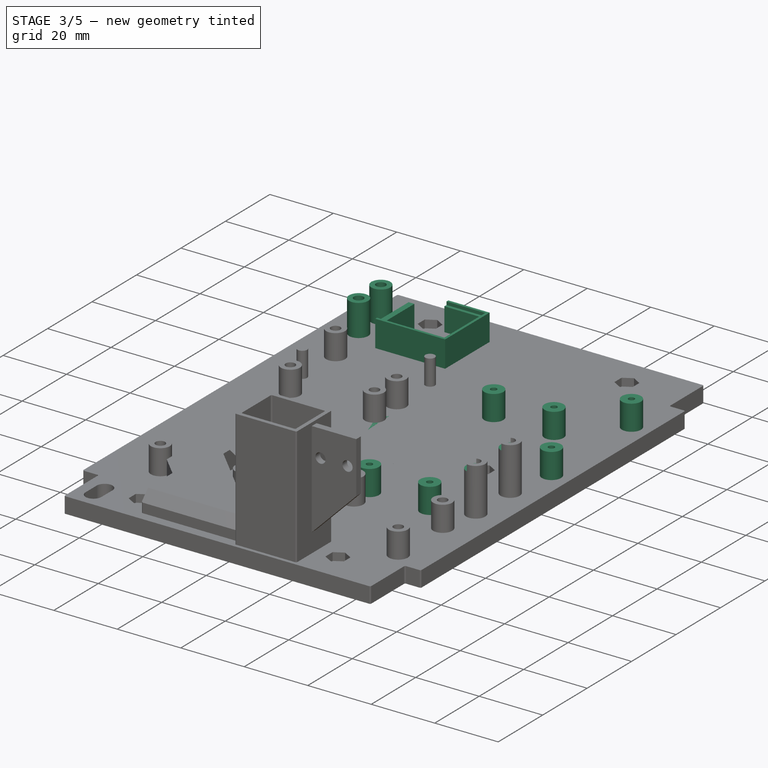
[diagram: stage 3 of 5 — iso view after this stage's code; geometry added in this stage tinted green]
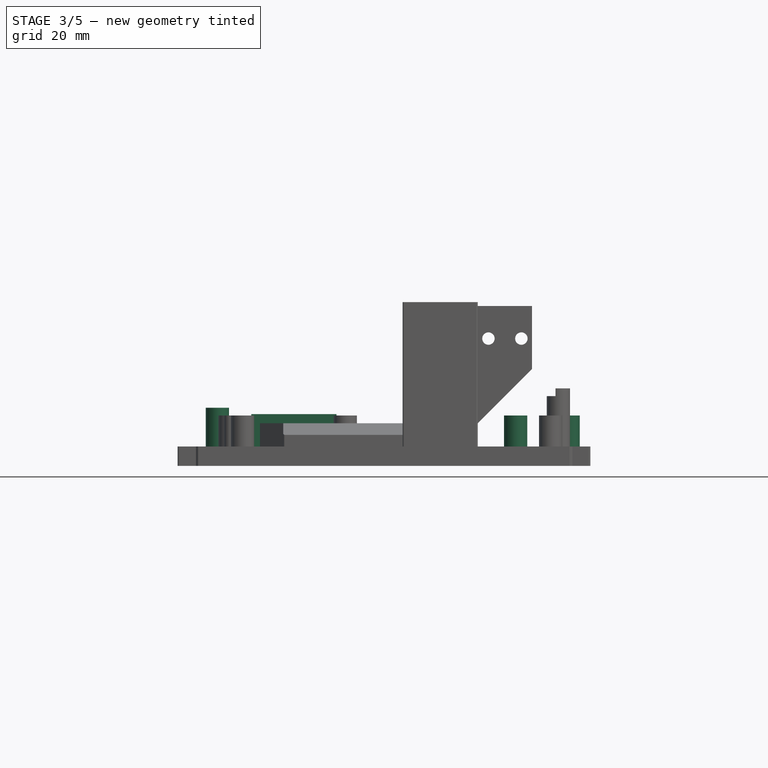
[diagram: stage 3 of 5 — front view after this stage's code; geometry added in this stage tinted green]
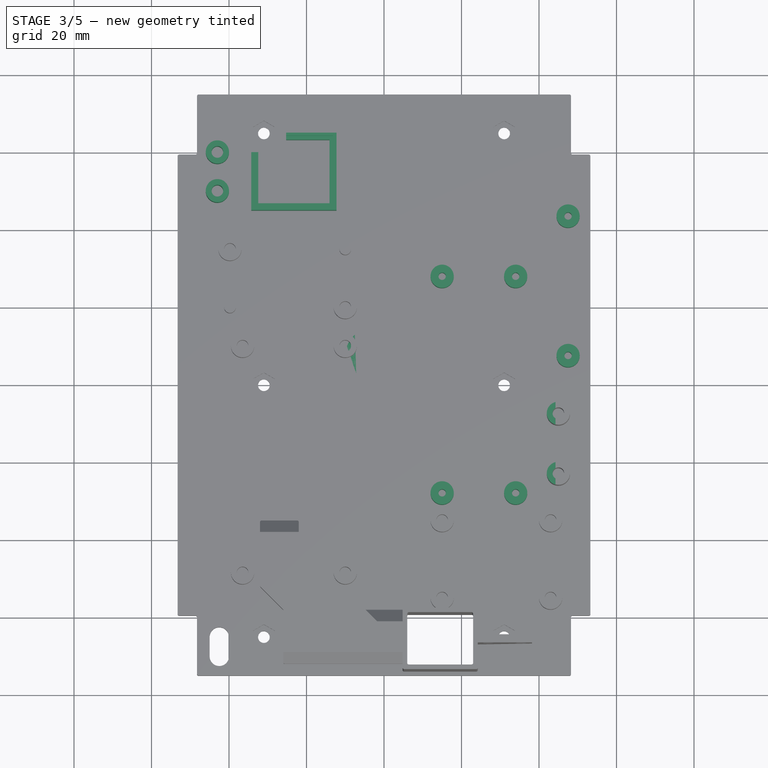
[diagram: stage 3 of 5 — top view after this stage's code; geometry added in this stage tinted green]
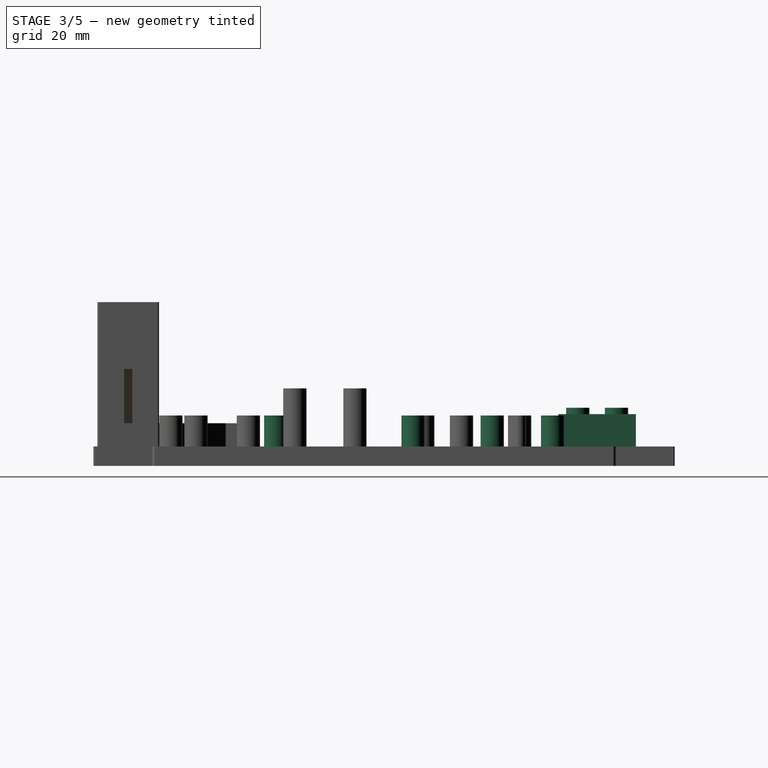
[diagram: stage 3 of 5 — right view after this stage's code; geometry added in this stage tinted green]
FEATURE [PartDesign::Body] Body001  label="Circuitry Mountingplate Front Extension"
  Group = -> [Sketch417,Pad197,Sketch442,Pocket202,DatumPlane,Sketch443,Pocket203,DatumPlane001,Sketch444,Pocket204,Pocket205,Pocket206,Pad228,Pocket207,Pocket208,Pocket209]
  Origin = -> Origin002
  Placement = pos=(0,103.75,2) rot=(0,0,1;0rad)
  Tip = -> Pocket209
FEATURE [Sketcher::SketchObject] Sketch445
  MapMode = 5
  Support = -> [XY_Plane231]
  sketch-geometry (6):
    g0: LineSegment StartX=-10 StartY=-28.75 StartZ=0 EndX=10 EndY=-28.75 EndZ=0
    g1: LineSegment StartX=10 StartY=-28.75 StartZ=0 EndX=10 EndY=7.5 EndZ=0
    g2: LineSegment StartX=2.5 StartY=15 StartZ=0 EndX=-2.5 EndY=15 EndZ=0
    g3: LineSegment StartX=-10 StartY=7.5 StartZ=0 EndX=-10 EndY=-28.75 EndZ=0
    g4: ArcOfCircle CenterX=-2.5 CenterY=7.5 CenterZ=0 NormalX=0 NormalY=0 NormalZ=1 AngleXU=0 Radius=7.5 StartAngle=1.5708 EndAngle=3.14159
    g5: ArcOfCircle CenterX=2.5 CenterY=7.5 CenterZ=0 NormalX=0 NormalY=0 NormalZ=1 AngleXU=0 Radius=7.5 StartAngle=0 EndAngle=1.5708
  constraints (15):
    c: Coincident(g0,g1)
    c: Coincident(g3,g0)
    c: Horizontal(g0)
    c: Vertical(g1)
    c: Vertical(g3)
    c: Tangent(g2,g4) = -1.5708
    c: Tangent(g3,g4) = -1.5708
    c: Tangent(g1,g5) = -1.5708
    c: Tangent(g2,g5) = -1.5708
    c: DistanceX(g3,g1) = 20
    c: Symmetric(g2,g2,g-2)
    c: Equal(g4,g5)
    c: Radius(g5) = 7.5
    c: DistanceY(g0,g2) = 43.75
    c: DistanceY(g0,g-1) = 28.75
FEATURE [PartDesign::Pad] Pad229  label="Baseplate Rear Extension"
  Length = 5
  Length2 = 100
  Profile = -> Sketch445
  Type = 0
FEATURE [Sketcher::SketchObject] Sketch447
  MapMode = 5
  Placement = pos=(0,0,0) rot=(1,0,0;1.5708rad)
  Support = -> [XZ_Plane233]
  sketch-geometry (12):
    g0: LineSegment StartX=-10 StartY=0 StartZ=0 EndX=-10 EndY=5 EndZ=0
    g1: LineSegment [constr] StartX=-10 StartY=5 StartZ=0 EndX=-5 EndY=0 EndZ=0
    g2: LineSegment StartX=-5 StartY=0 StartZ=0 EndX=-10 EndY=0 EndZ=0
    g3: LineSegment StartX=10 StartY=0 StartZ=0 EndX=10 EndY=5 EndZ=0
    g4: LineSegment [constr] StartX=10 StartY=5 StartZ=0 EndX=5 EndY=0 EndZ=0
    g5: LineSegment StartX=5 StartY=0 StartZ=0 EndX=10 EndY=0 EndZ=0
    g6: LineSegment StartX=-10 StartY=5 StartZ=0 EndX=-8.58579 EndY=6.41421 EndZ=0
    g7: LineSegment StartX=10 StartY=5 StartZ=0 EndX=8.58579 EndY=6.41421 EndZ=0
    g8: LineSegment StartX=-8.58579 StartY=6.41421 StartZ=0 EndX=-2.17157 EndY=0 EndZ=0
    g9: LineSegment StartX=-5 StartY=0 StartZ=0 EndX=-2.17157 EndY=0 EndZ=0
    g10: LineSegment StartX=5 StartY=0 StartZ=0 EndX=2.17157 EndY=0 EndZ=0
    g11: LineSegment StartX=2.17157 StartY=0 StartZ=0 EndX=8.58579 EndY=6.41421 EndZ=0
  constraints (32):
    c: PointOnObject(g0,g-1)
    c: Vertical(g0)
    c: Coincident(g0,g1)
    c: Coincident(g1,g2)
    c: Coincident(g2,g0)
    c: Horizontal(g2)
    c: PointOnObject(g3,g-1)
    c: Vertical(g3)
    c: Coincident(g3,g4)
    c: Coincident(g4,g5)
    c: Coincident(g5,g3)
    c: Symmetric(g0,g3,g-2)
    c: Symmetric(g1,g4,g-2)
    c: DistanceX(g0,g3) = 20
    c: Angle(g1,g2) = 0.785398
    c: DistanceY(g3,g3) = 5
    c: Coincident(g6,g0)
    c: Coincident(g7,g3)
    c: Perpendicular(g1,g6)
    c: Distance(g6) = 2
    c: Perpendicular(g4,g7)
    c: Equal(g7,g6)
    c: Coincident(g8,g6)
    c: PointOnObject(g8,g-1)
    c: Coincident(g9,g2)
    c: Coincident(g9,g8)
    c: Coincident(g10,g5)
    c: Horizontal(g10)
    c: Coincident(g11,g10)
    c: Coincident(g11,g7)
    c: Parallel(g4,g11)
    c: Parallel(g1,g8)
FEATURE [PartDesign::Pocket] Pocket214  label="LED-Cutout001"
  BaseFeature = -> Pad229
  Length = 3
  Length2 = 3
  Profile = -> Sketch447
  Type = 4
FEATURE [Sketcher::SketchObject] Sketch454
  MapMode = 5
  Placement = pos=(0,0,20) rot=(0,0,1;0rad)
  Support = -> [Pad234]
  sketch-geometry (4):
    g0: LineSegment StartX=42 StartY=-4.5 StartZ=0 EndX=44.25 EndY=-4.5 EndZ=0
    g1: LineSegment StartX=44.25 StartY=-4.5 StartZ=0 EndX=44.25 EndY=-26 EndZ=0
    g2: LineSegment StartX=44.25 StartY=-26 StartZ=0 EndX=42 EndY=-26 EndZ=0
    g3: LineSegment StartX=42 StartY=-26 StartZ=0 EndX=42 EndY=-4.5 EndZ=0
  constraints (12):
    c: Coincident(g0,g1)
    c: Coincident(g1,g2)
    c: Coincident(g2,g3)
    c: Coincident(g3,g0)
    c: Horizontal(g0)
    c: Horizontal(g2)
    c: Vertical(g1)
    c: Vertical(g3)
    c: DistanceX(g0,g0) = 2.25
    c: DistanceY(g3,g3) = 21.5
    c: DistanceX(g-1,g0) = 44.25
    c: DistanceY(g0,g-1) = 4.5
FEATURE [PartDesign::Pocket] Pocket219  label="GY-521 IMU Pins Cutout"
  BaseFeature = -> Pad234
  Length = 2
  Length2 = 100
  Profile = -> Sketch454
  Type = 0
FEATURE [Sketcher::SketchObject] Sketch455
  MapMode = 5
  Placement = pos=(0,0,5) rot=(0,0,1;0rad)
  Support = -> [Pocket219]
  sketch-geometry (12):
    g0: LineSegment [constr] StartX=15 StartY=-27.95 StartZ=0 EndX=33.98 EndY=-27.95 EndZ=0
    g1: LineSegment [constr] StartX=33.98 StartY=-27.95 StartZ=0 EndX=33.98 EndY=27.95 EndZ=0
    g2: LineSegment [constr] StartX=33.98 StartY=27.95 StartZ=0 EndX=15 EndY=27.95 EndZ=0
    g3: LineSegment [constr] StartX=15 StartY=27.95 StartZ=0 EndX=15 EndY=-27.95 EndZ=0
    g4: Circle CenterX=15 CenterY=27.95 CenterZ=0 NormalX=0 NormalY=0 NormalZ=1 AngleXU=0 Radius=0.95
    g5: Circle CenterX=33.98 CenterY=27.95 CenterZ=0 NormalX=0 NormalY=0 NormalZ=1 AngleXU=0 Radius=0.95
    g6: Circle CenterX=33.98 CenterY=-27.95 CenterZ=0 NormalX=0 NormalY=0 NormalZ=1 AngleXU=0 Radius=0.95
    g7: Circle CenterX=15 CenterY=-27.95 CenterZ=0 NormalX=0 NormalY=0 NormalZ=1 AngleXU=0 Radius=0.95
    g8: Circle CenterX=15 CenterY=-27.95 CenterZ=0 NormalX=0 NormalY=0 NormalZ=1 AngleXU=0 Radius=3
    g9: Circle CenterX=15 CenterY=27.95 CenterZ=0 NormalX=0 NormalY=0 NormalZ=1 AngleXU=0 Radius=3
    g10: Circle CenterX=33.98 CenterY=27.95 CenterZ=0 NormalX=0 NormalY=0 NormalZ=1 AngleXU=0 Radius=3
    g11: Circle CenterX=33.98 CenterY=-27.95 CenterZ=0 NormalX=0 NormalY=0 NormalZ=1 AngleXU=0 Radius=3
  constraints (27):
    c: Coincident(g0,g1)
    c: Coincident(g1,g2)
    c: Coincident(g2,g3)
    c: Coincident(g3,g0)
    c: Horizontal(g0)
    c: Horizontal(g2)
    c: Vertical(g3)
    c: Symmetric(g1,g0,g-1)
    c: DistanceX(g2,g2) = 18.98
    c: DistanceY(g3,g3) = 55.9
    c: DistanceX(g-1,g2) = 15
    c: Coincident(g4,g2)
    c: Coincident(g5,g1)
    c: Coincident(g6,g0)
    c: Coincident(g7,g0)
    c: Coincident(g8,g7)
    c: Coincident(g9,g4)
    c: Coincident(g10,g5)
    c: Coincident(g11,g6)
    c: Radius(g6) = 0.95
    c: Equal(g6,g7)
    c: Equal(g6,g4)
    c: Equal(g6,g5)
    c: Radius(g10) = 3
    c: Equal(g10,g9)
    c: Equal(g10,g8)
    c: Equal(g10,g11)
FEATURE [PartDesign::Pad] Pad235  label="PCA9685 PWM Module Pins"
  BaseFeature = -> Pocket219
  Length = 8
  Length2 = 100
  Profile = -> Sketch455
  Type = 0
FEATURE [Sketcher::SketchObject] Sketch456
  MapMode = 5
  Placement = pos=(0,0,5) rot=(0,0,1;0rad)
  Support = -> [Pad235]
  sketch-geometry (5):
    g0: LineSegment [constr] StartX=47.5 StartY=43.5 StartZ=0 EndX=47.5 EndY=7.5 EndZ=0
    g1: Circle CenterX=47.5 CenterY=43.5 CenterZ=0 NormalX=0 NormalY=0 NormalZ=1 AngleXU=0 Radius=0.95
    g2: Circle CenterX=47.5 CenterY=7.5 CenterZ=0 NormalX=0 NormalY=0 NormalZ=1 AngleXU=0 Radius=0.95
    g3: Circle CenterX=47.5 CenterY=7.5 CenterZ=0 NormalX=0 NormalY=0 NormalZ=1 AngleXU=0 Radius=3
    g4: Circle CenterX=47.5 CenterY=43.5 CenterZ=0 NormalX=0 NormalY=0 NormalZ=1 AngleXU=0 Radius=3
  constraints (12):
    c: Vertical(g0)
    c: Coincident(g1,g0)
    c: Coincident(g2,g0)
    c: Coincident(g3,g2)
    c: Coincident(g4,g1)
    c: Radius(g1) = 0.95
    c: Equal(g1,g2)
    c: Radius(g3) = 3
    c: Equal(g3,g4)
    c: DistanceY(g0,g0) = 36
    c: DistanceX(g-1,g2) = 47.5
    c: DistanceY(g-1,g2) = 7.5
FEATURE [PartDesign::Pad] Pad236  label="Headerboard Pins"
  BaseFeature = -> Pad235
  Length = 8
  Length2 = 100
  Profile = -> Sketch456
  Type = 0
FEATURE [Sketcher::SketchObject] Sketch468
  MapMode = 5
  Placement = pos=(0,0,5) rot=(0,0,1;0rad)
  Support = -> [Pad236]
  sketch-geometry (4):
    g0: Circle CenterX=-43 CenterY=60 CenterZ=0 NormalX=0 NormalY=0 NormalZ=1 AngleXU=0 Radius=3
    g1: Circle CenterX=-43 CenterY=50 CenterZ=0 NormalX=0 NormalY=0 NormalZ=1 AngleXU=0 Radius=3
    g2: Circle CenterX=-43 CenterY=60 CenterZ=0 NormalX=0 NormalY=0 NormalZ=1 AngleXU=0 Radius=1.5
    g3: Circle CenterX=-43 CenterY=50 CenterZ=0 NormalX=0 NormalY=0 NormalZ=1 AngleXU=0 Radius=1.5
  constraints (10):
    c: Coincident(g2,g0)
    c: Coincident(g3,g1)
    c: Vertical(g1,g0)
    c: Radius(g2) = 1.5
    c: Equal(g2,g3)
    c: Radius(g1) = 3
    c: Equal(g1,g0)
    c: DistanceY(g1,g0) = 10
    c: DistanceX(g1,g-1) = 43
    c: DistanceY(g-1,g0) = 60
FEATURE [PartDesign::Pad] Pad244  label="ESP32 TTL Pins"
  BaseFeature = -> Pad236
  Length = 10
  Length2 = 100
  Profile = -> Sketch468
  Type = 0
FEATURE [Sketcher::SketchObject] Sketch469
  MapMode = 5
  Placement = pos=(0,0,5) rot=(0,0,1;0rad)
  Support = -> [Pad244]
  sketch-geometry (12):
    g0: LineSegment StartX=-25.25 StartY=65 StartZ=0 EndX=-12.25 EndY=65 EndZ=0
    g1: LineSegment StartX=-12.25 StartY=65 StartZ=0 EndX=-12.25 EndY=45 EndZ=0
    g2: LineSegment StartX=-12.25 StartY=45 StartZ=0 EndX=-34.25 EndY=45 EndZ=0
    g3: LineSegment StartX=-32.45 StartY=60 StartZ=0 EndX=-34.25 EndY=60 EndZ=0
    g4: LineSegment StartX=-34.25 StartY=45 StartZ=0 EndX=-34.25 EndY=60 EndZ=0
    g5: LineSegment StartX=-32.45 StartY=60 StartZ=0 EndX=-32.45 EndY=46.8 EndZ=0
    g6: LineSegment StartX=-32.45 StartY=46.8 StartZ=0 EndX=-14.05 EndY=46.8 EndZ=0
    g7: LineSegment StartX=-14.05 StartY=46.8 StartZ=0 EndX=-14.05 EndY=63.2 EndZ=0
    g8: LineSegment StartX=-14.05 StartY=63.2 StartZ=0 EndX=-25.25 EndY=63.2 EndZ=0
    g9: LineSegment StartX=-25.25 StartY=63.2 StartZ=0 EndX=-25.25 EndY=65 EndZ=0
    g10: LineSegment [constr] StartX=-14.05 StartY=63.2 StartZ=0 EndX=-12.25 EndY=63.2 EndZ=0
    g11: LineSegment [constr] StartX=-32.45 StartY=46.8 StartZ=0 EndX=-32.45 EndY=45 EndZ=0
  constraints (37):
    c: Coincident(g0,g1)
    c: Coincident(g1,g2)
    c: Horizontal(g0)
    c: Horizontal(g2)
    c: Vertical(g1)
    c: DistanceX(g1,g-1) = 12.25
    c: DistanceX(g2,g2) = 22
    c: DistanceY(g1,g1) = 20
    c: DistanceY(g-1,g1) = 45
    c: Horizontal(g3)
    c: Coincident(g4,g2)
    c: Coincident(g4,g3)
    c: Vertical(g4)
    c: Coincident(g3,g5)
    c: Vertical(g5)
    c: Coincident(g5,g6)
    c: Horizontal(g6)
    c: Coincident(g6,g7)
    c: Vertical(g7)
    c: Coincident(g7,g8)
    c: Horizontal(g8)
    c: Coincident(g8,g9)
    c: Coincident(g9,g0)
    c: Vertical(g9)
    c: Equal(g9,g3)
    c: DistanceY(g9,g9) = 1.8
    c: DistanceY(g4,g4) = 15
    c: DistanceX(g0,g0) = 13
    c: Coincident(g10,g7)
    c: PointOnObject(g10,g1)
    c: Horizontal(g10)
    c: Coincident(g11,g5)
    c: PointOnObject(g11,g2)
    c: Vertical(g11)
    c: Equal(g11,g3)
    c: Equal(g3,g9)
    c: Equal(g9,g10)
FEATURE [PartDesign::Pad] Pad245  label="ESP32-SOC Pocket"
  BaseFeature = -> Pad244
  Length = 8.35
  Length2 = 100
  Profile = -> Sketch469
  Type = 0
FEATURE [Sketcher::SketchObject] Sketch470
  MapMode = 5
  Placement = pos=(0,0,13.35) rot=(0,0,1;0rad)
  Support = -> [Pad245]
  sketch-geometry (4):
    g0: LineSegment StartX=-35.05 StartY=64.2 StartZ=0 EndX=-13.05 EndY=64.2 EndZ=0
    g1: LineSegment StartX=-13.05 StartY=64.2 StartZ=0 EndX=-13.05 EndY=45.8 EndZ=0
    g2: LineSegment StartX=-13.05 StartY=45.8 StartZ=0 EndX=-35.05 EndY=45.8 EndZ=0
    g3: LineSegment StartX=-35.05 StartY=45.8 StartZ=0 EndX=-35.05 EndY=64.2 EndZ=0
  constraints (12):
    c: Coincident(g0,g1)
    c: Coincident(g1,g2)
    c: Coincident(g2,g3)
    c: Coincident(g3,g0)
    c: Horizontal(g0)
    c: Horizontal(g2)
    c: Vertical(g1)
    c: Vertical(g3)
    c: DistanceX(g1,g-1) = 13.05
    c: DistanceX(g2,g2) = 22
    c: DistanceY(g-1,g1) = 45.8
    c: DistanceY(g3,g3) = 18.4
FEATURE [PartDesign::Pocket] Pocket225  label="ESP32-SOC Antenna Pocket"
  BaseFeature = -> Pad245
  Length = 1
  Length2 = 100
  Profile = -> Sketch470
  Type = 0
FEATURE [PartDesign::Body] Body  label="Circuitry Mountingplate Base"
  Group = -> [Sketch,Pad,Sketch002,Pocket,Sketch003,Pocket001,Sketch004,Pocket002,Sketch006,Pad001,Sketch007,Pad002,Sketch008,Pad003,Sketch009,Pocket003,Sketch010,Pocket004,Sketch410,Pad193,Sketch414,Pocket198,Chamfer,Sketch449,Pocket218,Fillet,Sketch450,Pad231,Sketch451,Pad232,Sketch452,Pad233,Sketch453,Pad234,Sketch454,Pocket219,Sketch455,Pad235,Sketch456,Pad236,Sketch468,Pad244,Sketch469,Pad245,Sketch470,+1 more]
  Origin = -> Origin001
  Tip = -> Pocket225
FEATURE [App::Part] Part  label="Circuitry Mountingplate"
  Group = -> [Body,Body001,Body150]
  Origin = -> Origin
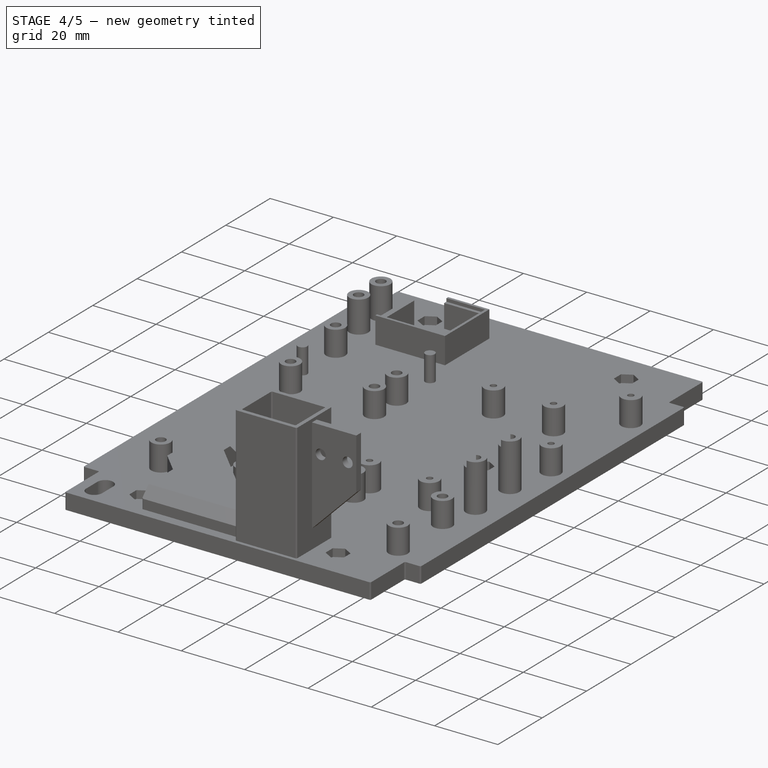
[diagram: stage 4 of 5 — iso view after this stage's code; geometry added in this stage tinted green]
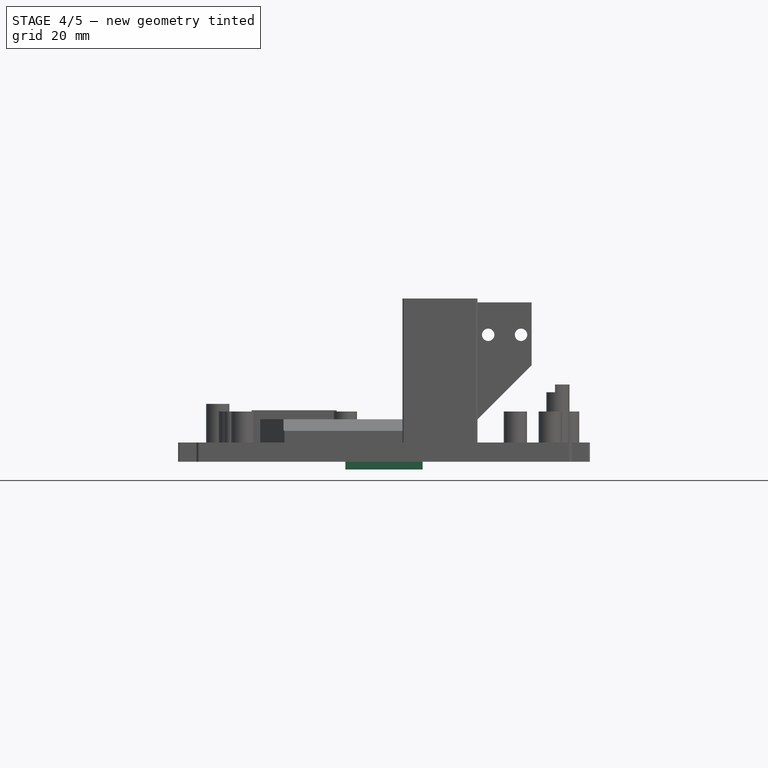
[diagram: stage 4 of 5 — front view after this stage's code; geometry added in this stage tinted green]
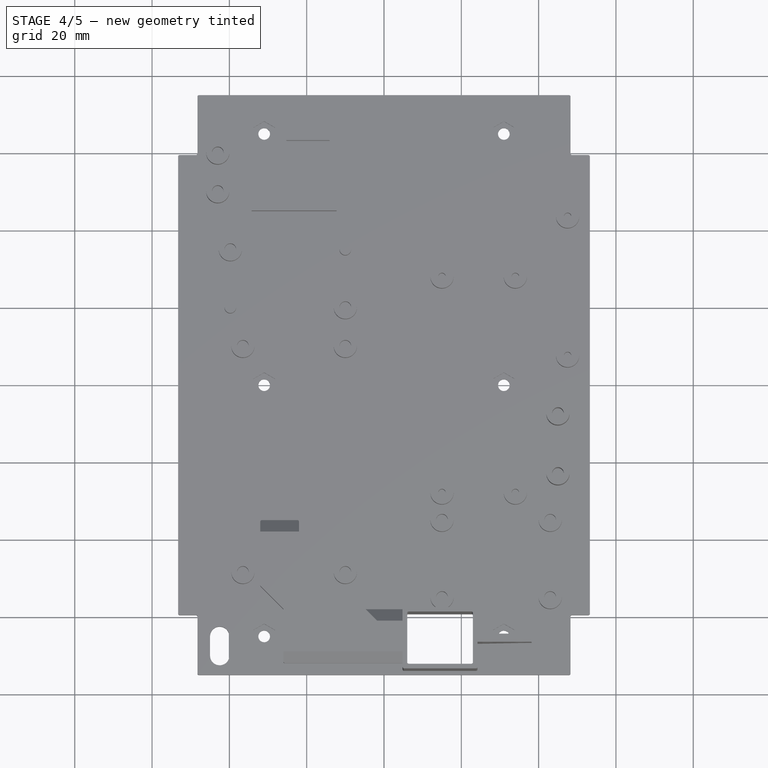
[diagram: stage 4 of 5 — top view after this stage's code; geometry added in this stage tinted green]
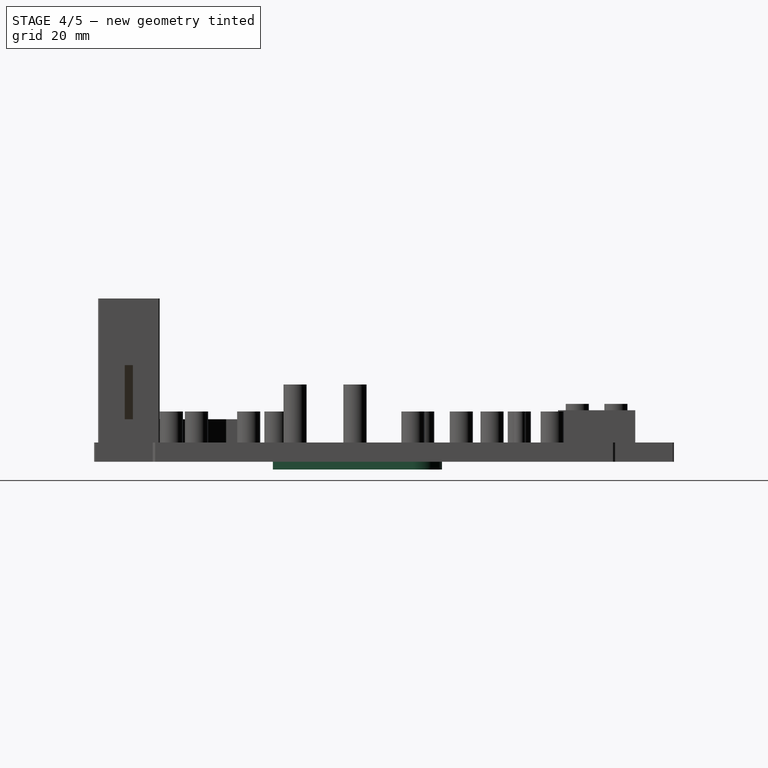
[diagram: stage 4 of 5 — right view after this stage's code; geometry added in this stage tinted green]
FEATURE [Sketcher::SketchObject] Sketch417
  MapMode = 5
  Support = -> [XY_Plane002]
  sketch-geometry (6):
    g0: LineSegment StartX=-10 StartY=-28.75 StartZ=0 EndX=10 EndY=-28.75 EndZ=0
    g1: LineSegment StartX=10 StartY=-28.75 StartZ=0 EndX=10 EndY=7.5 EndZ=0
    g2: LineSegment StartX=2.5 StartY=15 StartZ=0 EndX=-2.5 EndY=15 EndZ=0
    g3: LineSegment StartX=-10 StartY=7.5 StartZ=0 EndX=-10 EndY=-28.75 EndZ=0
    g4: ArcOfCircle CenterX=-2.5 CenterY=7.5 CenterZ=0 NormalX=0 NormalY=0 NormalZ=1 AngleXU=0 Radius=7.5 StartAngle=1.5708 EndAngle=3.14159
    g5: ArcOfCircle CenterX=2.5 CenterY=7.5 CenterZ=0 NormalX=0 NormalY=0 NormalZ=1 AngleXU=0 Radius=7.5 StartAngle=0 EndAngle=1.5708
  constraints (15):
    c: Coincident(g0,g1)
    c: Coincident(g3,g0)
    c: Horizontal(g0)
    c: Vertical(g1)
    c: Vertical(g3)
    c: Tangent(g2,g4) = -1.5708
    c: Tangent(g3,g4) = -1.5708
    c: Tangent(g1,g5) = -1.5708
    c: Tangent(g2,g5) = -1.5708
    c: DistanceX(g3,g1) = 20
    c: Symmetric(g2,g2,g-2)
    c: Equal(g4,g5)
    c: Radius(g5) = 7.5
    c: DistanceY(g0,g2) = 43.75
    c: DistanceY(g0,g-1) = 28.75
FEATURE [PartDesign::Pad] Pad197  label="Baseplate Front Extension"
  Length = 5
  Length2 = 100
  Profile = -> Sketch417
  Type = 0
FEATURE [PartDesign::Plane] DatumPlane002
  Length = 50.7854
  MapMode = 7
  Placement = pos=(-7.17157,3,5) rot=(0.357407,-0.357407,-0.862856;1.71777rad)
  ResizeMode = 0
  Support = -> [Pocket214]
  Width = 35.3197
FEATURE [Sketcher::SketchObject] Sketch446
  MapMode = 5
  Placement = pos=(-7.17157,3,5) rot=(0.357407,-0.357407,-0.862856;1.71777rad)
  Support = -> [DatumPlane002]
  sketch-geometry (4):
    g0: LineSegment StartX=-2 StartY=0 StartZ=0 EndX=8 EndY=0 EndZ=0
    g1: LineSegment StartX=8 StartY=0 StartZ=0 EndX=8 EndY=-2 EndZ=0
    g2: LineSegment StartX=8 StartY=-2 StartZ=0 EndX=-2 EndY=-2 EndZ=0
    g3: LineSegment StartX=-2 StartY=-2 StartZ=0 EndX=-2 EndY=0 EndZ=0
  constraints (12):
    c: Coincident(g0,g1)
    c: Coincident(g1,g2)
    c: Coincident(g2,g3)
    c: Coincident(g3,g0)
    c: Horizontal(g0)
    c: Horizontal(g2)
    c: Vertical(g1)
    c: Vertical(g3)
    c: PointOnObject(g0,g-1)
    c: DistanceX(g0,g0) = 10
    c: DistanceX(g0,g-1) = 2
    c: DistanceY(g3,g3) = 2
FEATURE [PartDesign::Pocket] Pocket215  label="left PCB Expansion001"
  BaseFeature = -> Pocket214
  Length = 5
  Length2 = 2
  Profile = -> Sketch446
  Type = 4
FEATURE [PartDesign::Plane] DatumPlane003
  Length = 50.7854
  MapMode = 1
  Placement = pos=(7.17157,3,5) rot=(0.357407,0.357407,0.862856;1.71777rad)
  ResizeMode = 0
  Support = -> [Pocket215]
  Width = 35.3197
FEATURE [Sketcher::SketchObject] Sketch448
  MapMode = 5
  Placement = pos=(7.17157,3,5) rot=(0.357407,0.357407,0.862856;1.71777rad)
  Support = -> [DatumPlane003]
  sketch-geometry (4):
    g0: LineSegment StartX=-8 StartY=-2 StartZ=0 EndX=2 EndY=-2 EndZ=0
    g1: LineSegment StartX=2 StartY=-2 StartZ=0 EndX=2 EndY=0 EndZ=0
    g2: LineSegment StartX=2 StartY=0 StartZ=0 EndX=-8 EndY=0 EndZ=0
    g3: LineSegment StartX=-8 StartY=0 StartZ=0 EndX=-8 EndY=-2 EndZ=0
  constraints (12):
    c: Coincident(g0,g1)
    c: Coincident(g1,g2)
    c: Coincident(g2,g3)
    c: Coincident(g3,g0)
    c: Horizontal(g0)
    c: Horizontal(g2)
    c: Vertical(g1)
    c: Vertical(g3)
    c: Horizontal(g1,g-1)
    c: DistanceX(g2,g2) = 10
    c: DistanceX(g-1,g1) = 2
    c: DistanceY(g1,g1) = 2
FEATURE [PartDesign::Pocket] Pocket216  label="right PCB Expansion001"
  BaseFeature = -> Pocket215
  Length = 5
  Length2 = 2
  Profile = -> Sketch448
  Type = 4
FEATURE [PartDesign::Pocket] Pocket217  label="left PCB Wiring Cutout001"
  BaseFeature = -> Pocket216
  Length = 5
  Length2 = 100
  Profile = -> Pocket216 [Face20]
  Type = 0
FEATURE [PartDesign::Pocket] Pocket210  label="right PCB Wiring Cutout001"
  BaseFeature = -> Pocket217
  Length = 5
  Length2 = 100
  Profile = -> Pocket217 [Face26]
  Type = 0
FEATURE [PartDesign::Pad] Pad230  label="Strengthen Bottom001"
  BaseFeature = -> Pocket210
  Length = 2
  Length2 = 100
  Profile = -> Pocket210 [Face4]
  Type = 0
FEATURE [PartDesign::Pocket] Pocket213  label="Shorten Top001"
  BaseFeature = -> Pad230
  Length = 2
  Length2 = 100
  Profile = -> Pad230 [Face5]
  Type = 0
FEATURE [PartDesign::Pocket] Pocket211  label="left PCB Wiring extended Cutout001"
  BaseFeature = -> Pocket213
  Length = 5
  Length2 = 100
  Profile = -> Pocket213 [Face66]
  Type = 0
FEATURE [PartDesign::Pocket] Pocket212  label="right PCB Wiring extended Cutout001"
  BaseFeature = -> Pocket211
  Length = 5
  Length2 = 100
  Profile = -> Pocket211 [Face38]
  Type = 0
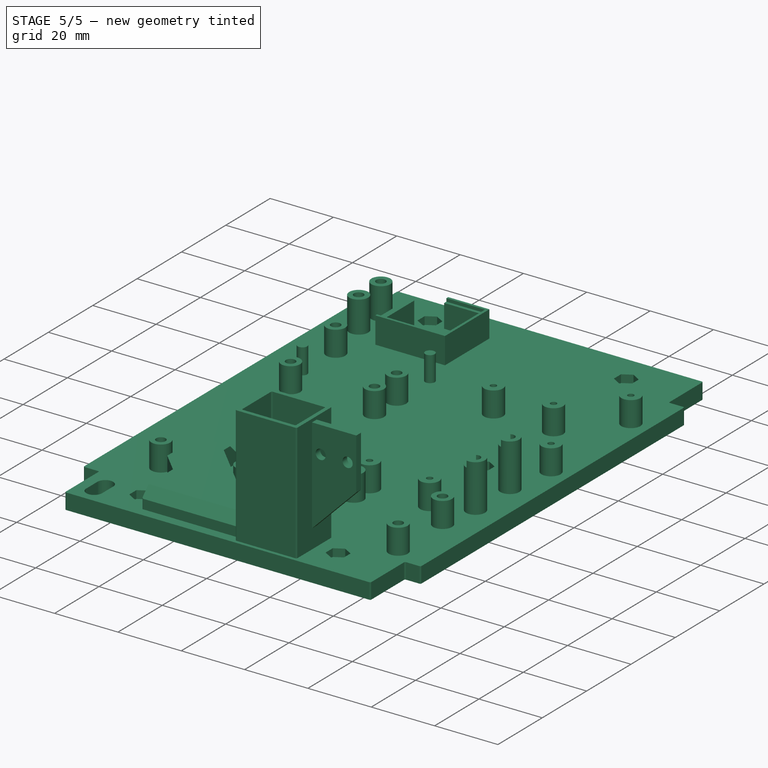
[diagram: stage 5 of 5 — iso view after this stage's code; geometry added in this stage tinted green]
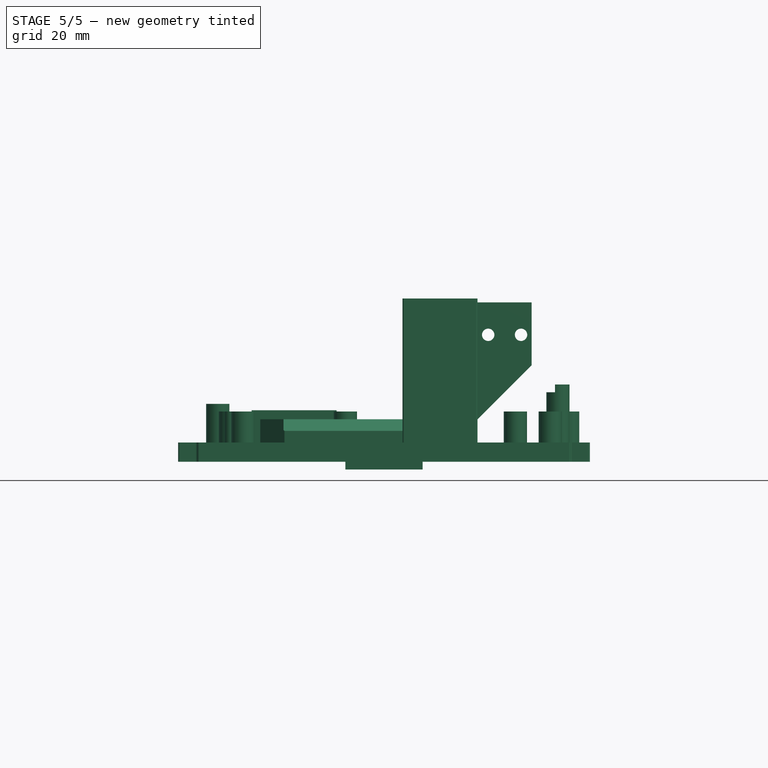
[diagram: stage 5 of 5 — front view after this stage's code; geometry added in this stage tinted green]
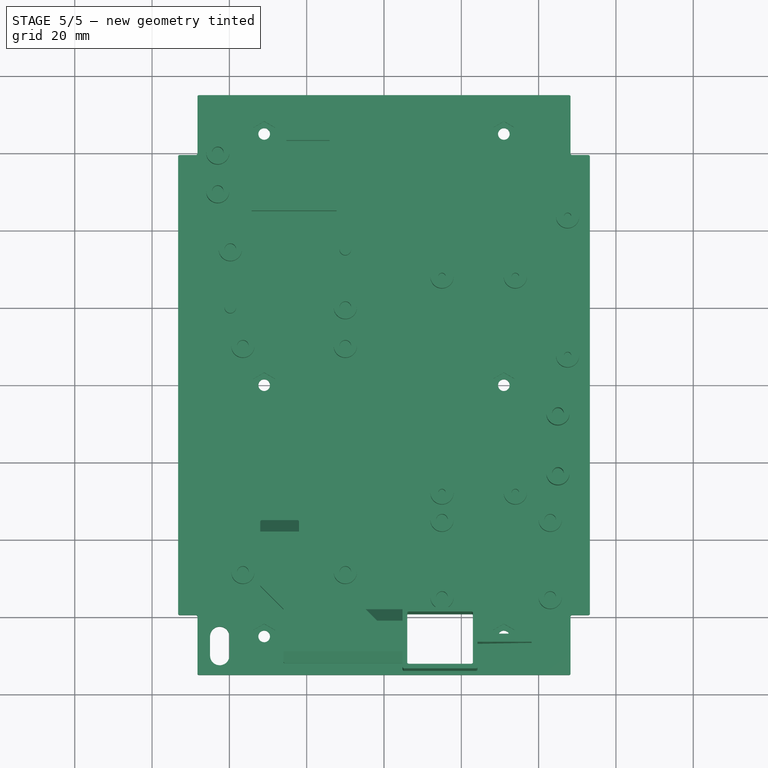
[diagram: stage 5 of 5 — top view after this stage's code; geometry added in this stage tinted green]
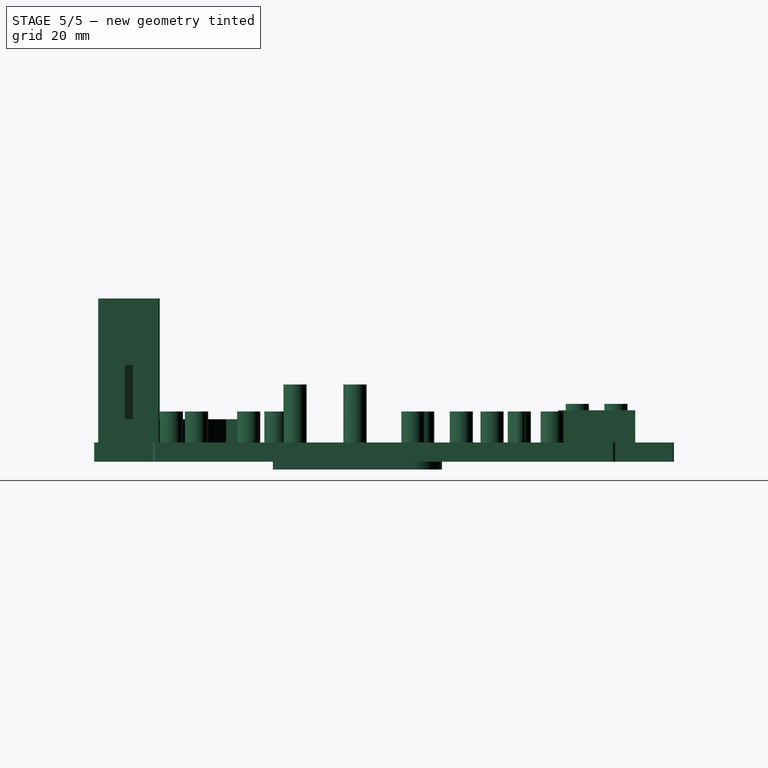
[diagram: stage 5 of 5 — right view after this stage's code; geometry added in this stage tinted green]
FEATURE [Sketcher::SketchObject] Sketch442
  MapMode = 5
  Placement = pos=(0,0,0) rot=(1,0,0;1.5708rad)
  Support = -> [XZ_Plane002]
  sketch-geometry (12):
    g0: LineSegment StartX=-10 StartY=0 StartZ=0 EndX=-10 EndY=5 EndZ=0
    g1: LineSegment [constr] StartX=-10 StartY=5 StartZ=0 EndX=-5 EndY=0 EndZ=0
    g2: LineSegment StartX=-5 StartY=0 StartZ=0 EndX=-10 EndY=0 EndZ=0
    g3: LineSegment StartX=10 StartY=0 StartZ=0 EndX=10 EndY=5 EndZ=0
    g4: LineSegment [constr] StartX=10 StartY=5 StartZ=0 EndX=5 EndY=0 EndZ=0
    g5: LineSegment StartX=5 StartY=0 StartZ=0 EndX=10 EndY=0 EndZ=0
    g6: LineSegment StartX=-10 StartY=5 StartZ=0 EndX=-8.58579 EndY=6.41421 EndZ=0
    g7: LineSegment StartX=10 StartY=5 StartZ=0 EndX=8.58579 EndY=6.41421 EndZ=0
    g8: LineSegment StartX=-8.58579 StartY=6.41421 StartZ=0 EndX=-2.17157 EndY=0 EndZ=0
    g9: LineSegment StartX=-5 StartY=0 StartZ=0 EndX=-2.17157 EndY=0 EndZ=0
    g10: LineSegment StartX=5 StartY=0 StartZ=0 EndX=2.17157 EndY=0 EndZ=0
    g11: LineSegment StartX=2.17157 StartY=0 StartZ=0 EndX=8.58579 EndY=6.41421 EndZ=0
  constraints (32):
    c: PointOnObject(g0,g-1)
    c: Vertical(g0)
    c: Coincident(g0,g1)
    c: Coincident(g1,g2)
    c: Coincident(g2,g0)
    c: Horizontal(g2)
    c: PointOnObject(g3,g-1)
    c: Vertical(g3)
    c: Coincident(g3,g4)
    c: Coincident(g4,g5)
    c: Coincident(g5,g3)
    c: Symmetric(g0,g3,g-2)
    c: Symmetric(g1,g4,g-2)
    c: DistanceX(g0,g3) = 20
    c: Angle(g1,g2) = 0.785398
    c: DistanceY(g3,g3) = 5
    c: Coincident(g6,g0)
    c: Coincident(g7,g3)
    c: Perpendicular(g1,g6)
    c: Distance(g6) = 2
    c: Perpendicular(g4,g7)
    c: Equal(g7,g6)
    c: Coincident(g8,g6)
    c: PointOnObject(g8,g-1)
    c: Coincident(g9,g2)
    c: Coincident(g9,g8)
    c: Coincident(g10,g5)
    c: Horizontal(g10)
    c: Coincident(g11,g10)
    c: Coincident(g11,g7)
    c: Parallel(g4,g11)
    c: Parallel(g1,g8)
FEATURE [PartDesign::Pocket] Pocket202  label="LED-Cutout"
  BaseFeature = -> Pad197
  Length = 3
  Length2 = 3
  Profile = -> Sketch442
  Type = 4
FEATURE [PartDesign::Plane] DatumPlane
  Length = 50.7854
  MapMode = 7
  Placement = pos=(-7.17157,3,5) rot=(0.357407,-0.357407,-0.862856;1.71777rad)
  ResizeMode = 0
  Support = -> [Pocket202]
  Width = 35.3197
FEATURE [Sketcher::SketchObject] Sketch443
  MapMode = 5
  Placement = pos=(-7.17157,3,5) rot=(0.357407,-0.357407,-0.862856;1.71777rad)
  Support = -> [DatumPlane]
  sketch-geometry (4):
    g0: LineSegment StartX=-2 StartY=0 StartZ=0 EndX=8 EndY=0 EndZ=0
    g1: LineSegment StartX=8 StartY=0 StartZ=0 EndX=8 EndY=-2 EndZ=0
    g2: LineSegment StartX=8 StartY=-2 StartZ=0 EndX=-2 EndY=-2 EndZ=0
    g3: LineSegment StartX=-2 StartY=-2 StartZ=0 EndX=-2 EndY=0 EndZ=0
  constraints (12):
    c: Coincident(g0,g1)
    c: Coincident(g1,g2)
    c: Coincident(g2,g3)
    c: Coincident(g3,g0)
    c: Horizontal(g0)
    c: Horizontal(g2)
    c: Vertical(g1)
    c: Vertical(g3)
    c: PointOnObject(g0,g-1)
    c: DistanceX(g0,g0) = 10
    c: DistanceX(g0,g-1) = 2
    c: DistanceY(g3,g3) = 2
FEATURE [PartDesign::Pocket] Pocket203  label="left PCB Expansion"
  BaseFeature = -> Pocket202
  Length = 5
  Length2 = 2
  Profile = -> Sketch443
  Type = 4
FEATURE [PartDesign::Plane] DatumPlane001
  Length = 50.7854
  MapMode = 1
  Placement = pos=(7.17157,3,5) rot=(0.357407,0.357407,0.862856;1.71777rad)
  ResizeMode = 0
  Support = -> [Pocket203]
  Width = 35.3197
FEATURE [Sketcher::SketchObject] Sketch444
  MapMode = 5
  Placement = pos=(7.17157,3,5) rot=(0.357407,0.357407,0.862856;1.71777rad)
  Support = -> [DatumPlane001]
  sketch-geometry (4):
    g0: LineSegment StartX=-8 StartY=-2 StartZ=0 EndX=2 EndY=-2 EndZ=0
    g1: LineSegment StartX=2 StartY=-2 StartZ=0 EndX=2 EndY=0 EndZ=0
    g2: LineSegment StartX=2 StartY=0 StartZ=0 EndX=-8 EndY=0 EndZ=0
    g3: LineSegment StartX=-8 StartY=0 StartZ=0 EndX=-8 EndY=-2 EndZ=0
  constraints (12):
    c: Coincident(g0,g1)
    c: Coincident(g1,g2)
    c: Coincident(g2,g3)
    c: Coincident(g3,g0)
    c: Horizontal(g0)
    c: Horizontal(g2)
    c: Vertical(g1)
    c: Vertical(g3)
    c: Horizontal(g1,g-1)
    c: DistanceX(g2,g2) = 10
    c: DistanceX(g-1,g1) = 2
    c: DistanceY(g1,g1) = 2
FEATURE [PartDesign::Pocket] Pocket204  label="right PCB Expansion"
  BaseFeature = -> Pocket203
  Length = 5
  Length2 = 2
  Profile = -> Sketch444
  Type = 4
FEATURE [PartDesign::Pocket] Pocket205  label="left PCB Wiring Cutout"
  BaseFeature = -> Pocket204
  Length = 5
  Length2 = 100
  Profile = -> Pocket204 [Face20]
  Type = 0
FEATURE [PartDesign::Pocket] Pocket206  label="right PCB Wiring Cutout"
  BaseFeature = -> Pocket205
  Length = 5
  Length2 = 100
  Profile = -> Pocket205 [Face26]
  Type = 0
FEATURE [PartDesign::Pad] Pad228  label="Strengthen Bottom"
  BaseFeature = -> Pocket206
  Length = 2
  Length2 = 100
  Profile = -> Pocket206 [Face4]
  Type = 0
FEATURE [PartDesign::Pocket] Pocket207  label="Shorten Top"
  BaseFeature = -> Pad228
  Length = 2
  Length2 = 100
  Profile = -> Pad228 [Face5]
  Type = 0
FEATURE [PartDesign::Pocket] Pocket208  label="left PCB Wiring extended Cutout"
  BaseFeature = -> Pocket207
  Length = 5
  Length2 = 100
  Profile = -> Pocket207 [Face66]
  Type = 0
FEATURE [PartDesign::Pocket] Pocket209  label="right PCB Wiring extended Cutout"
  BaseFeature = -> Pocket208
  Length = 5
  Length2 = 100
  Profile = -> Pocket208 [Face38]
  Type = 0
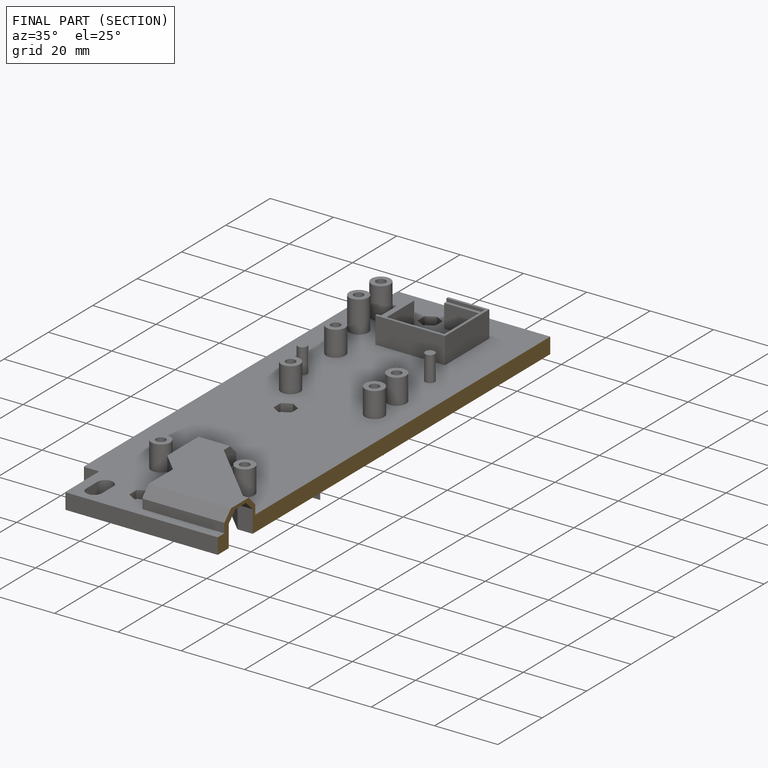
[diagram: finished part — half-section view (interior)]
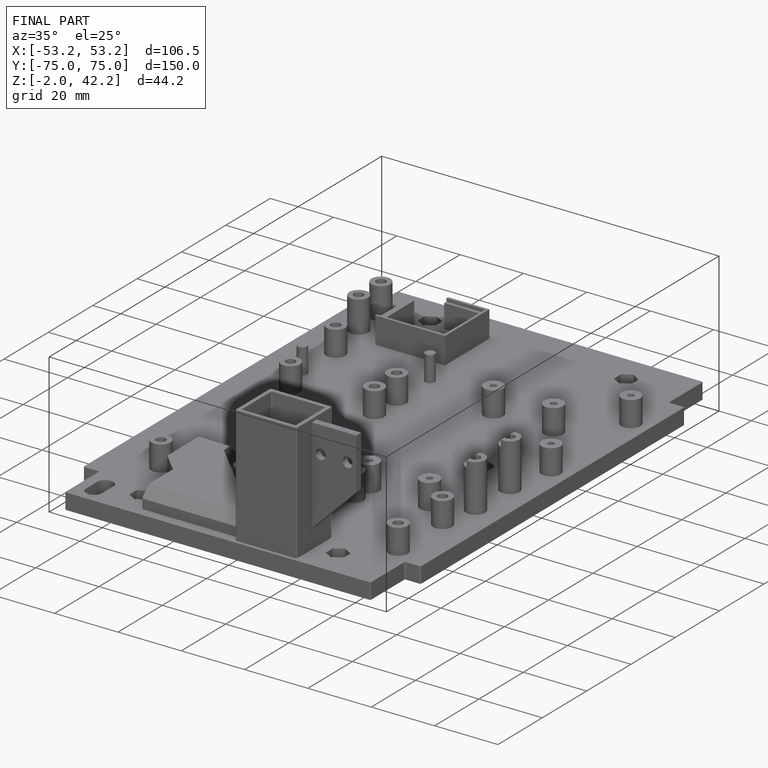
[diagram: finished part — iso view with bounding-box wireframe]
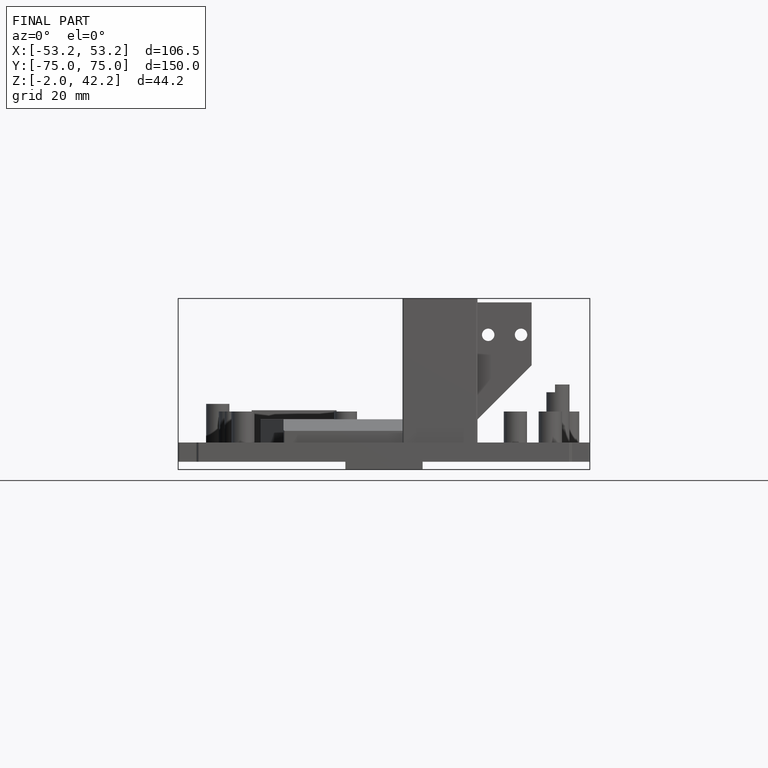
[diagram: finished part — front view with bounding-box wireframe]
